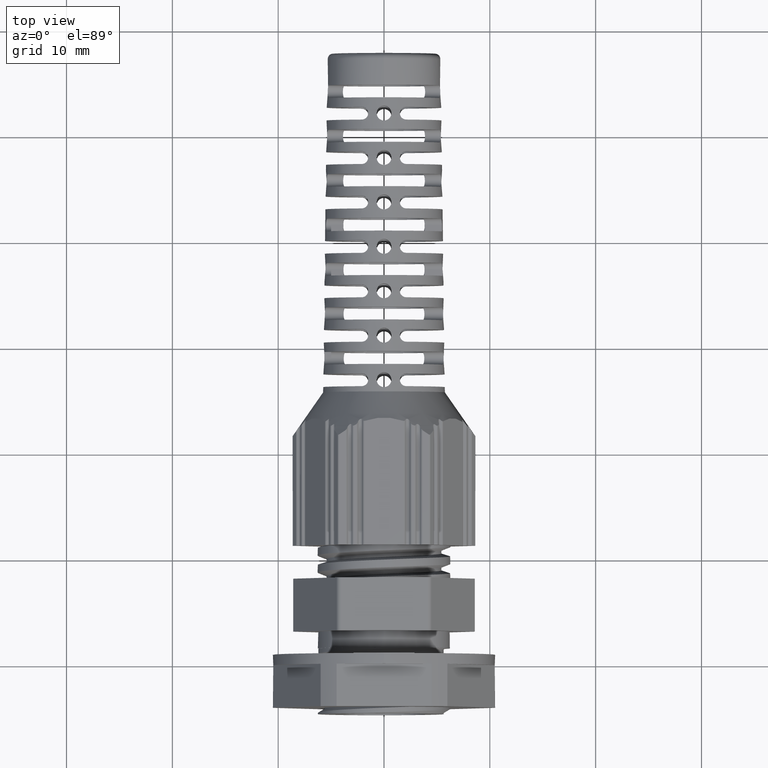
[diagram: clean part render]
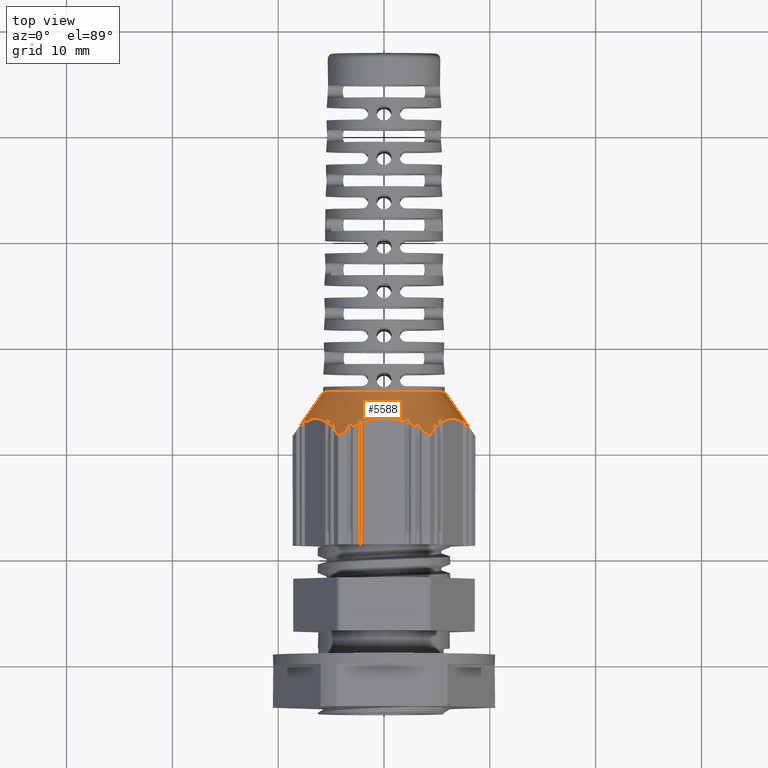
[diagram: same view with one face highlighted and labeled with its STEP entity id]
A machine part, top view. The second image highlights one B-rep face of the part: STEP entity #5588.
In plain terms, the highlighted conical surface has half-angle 34.87 deg.
Its self-contained STEP definition (entity closure, byte-faithful):
#238 = ORIENTED_EDGE ( 'NONE', *, *, #13161, .F. ) ;
#247 = ORIENTED_EDGE ( 'NONE', *, *, #13322, .F. ) ;
#248 = ORIENTED_EDGE ( 'NONE', *, *, #13273, .T. ) ;
#249 = ORIENTED_EDGE ( 'NONE', *, *, #13119, .F. ) ;
#250 = ORIENTED_EDGE ( 'NONE', *, *, #13089, .T. ) ;
#251 = ORIENTED_EDGE ( 'NONE', *, *, #13250, .F. ) ;
#252 = ORIENTED_EDGE ( 'NONE', *, *, #13218, .F. ) ;
#253 = ORIENTED_EDGE ( 'NONE', *, *, #13270, .T. ) ;
#254 = ORIENTED_EDGE ( 'NONE', *, *, #13132, .T. ) ;
#255 = ORIENTED_EDGE ( 'NONE', *, *, #13205, .F. ) ;
#256 = ORIENTED_EDGE ( 'NONE', *, *, #13315, .F. ) ;
#257 = ORIENTED_EDGE ( 'NONE', *, *, #13207, .T. ) ;
#258 = ORIENTED_EDGE ( 'NONE', *, *, #13146, .F. ) ;
#259 = ORIENTED_EDGE ( 'NONE', *, *, #13244, .F. ) ;
#260 = ORIENTED_EDGE ( 'NONE', *, *, #13102, .F. ) ;
#261 = ORIENTED_EDGE ( 'NONE', *, *, #13259, .T. ) ;
#262 = ORIENTED_EDGE ( 'NONE', *, *, #13224, .F. ) ;
#263 = ORIENTED_EDGE ( 'NONE', *, *, #13130, .T. ) ;
#264 = ORIENTED_EDGE ( 'NONE', *, *, #13298, .F. ) ;
#265 = ORIENTED_EDGE ( 'NONE', *, *, #13316, .T. ) ;
#266 = ORIENTED_EDGE ( 'NONE', *, *, #13313, .F. ) ;
#267 = ORIENTED_EDGE ( 'NONE', *, *, #13105, .F. ) ;
#268 = ORIENTED_EDGE ( 'NONE', *, *, #13257, .F. ) ;
#269 = ORIENTED_EDGE ( 'NONE', *, *, #13383, .F. ) ;
#270 = ORIENTED_EDGE ( 'NONE', *, *, #13082, .T. ) ;
#271 = ORIENTED_EDGE ( 'NONE', *, *, #13109, .T. ) ;
#272 = ORIENTED_EDGE ( 'NONE', *, *, #13261, .F. ) ;
#273 = ORIENTED_EDGE ( 'NONE', *, *, #13247, .F. ) ;
#274 = ORIENTED_EDGE ( 'NONE', *, *, #13096, .T. ) ;
#275 = ORIENTED_EDGE ( 'NONE', *, *, #13080, .T. ) ;
#276 = ORIENTED_EDGE ( 'NONE', *, *, #13192, .T. ) ;
#277 = ORIENTED_EDGE ( 'NONE', *, *, #13320, .T. ) ;
#278 = ORIENTED_EDGE ( 'NONE', *, *, #13100, .T. ) ;
#279 = ORIENTED_EDGE ( 'NONE', *, *, #13173, .T. ) ;
#280 = ORIENTED_EDGE ( 'NONE', *, *, #13296, .F. ) ;
#281 = ORIENTED_EDGE ( 'NONE', *, *, #13157, .F. ) ;
#282 = ORIENTED_EDGE ( 'NONE', *, *, #13167, .T. ) ;
#283 = ORIENTED_EDGE ( 'NONE', *, *, #13228, .F. ) ;
#284 = ORIENTED_EDGE ( 'NONE', *, *, #13145, .T. ) ;
#285 = ORIENTED_EDGE ( 'NONE', *, *, #13201, .F. ) ;
#286 = ORIENTED_EDGE ( 'NONE', *, *, #13180, .F. ) ;
#287 = ORIENTED_EDGE ( 'NONE', *, *, #13177, .F. ) ;
#288 = ORIENTED_EDGE ( 'NONE', *, *, #13239, .F. ) ;
#289 = ORIENTED_EDGE ( 'NONE', *, *, #13343, .F. ) ;
#290 = ORIENTED_EDGE ( 'NONE', *, *, #13141, .F. ) ;
#291 = ORIENTED_EDGE ( 'NONE', *, *, #13318, .T. ) ;
#292 = ORIENTED_EDGE ( 'NONE', *, *, #13181, .F. ) ;
#293 = ORIENTED_EDGE ( 'NONE', *, *, #13230, .F. ) ;
#294 = ORIENTED_EDGE ( 'NONE', *, *, #13252, .F. ) ;
#295 = ORIENTED_EDGE ( 'NONE', *, *, #13220, .F. ) ;
#296 = ORIENTED_EDGE ( 'NONE', *, *, #13359, .F. ) ;
#298 = ORIENTED_EDGE ( 'NONE', *, *, #13267, .T. ) ;
#299 = ORIENTED_EDGE ( 'NONE', *, *, #13215, .F. ) ;
#300 = ORIENTED_EDGE ( 'NONE', *, *, #13067, .T. ) ;
#301 = ORIENTED_EDGE ( 'NONE', *, *, #13441, .F. ) ;
#302 = ORIENTED_EDGE ( 'NONE', *, *, #13397, .F. ) ;
#303 = ORIENTED_EDGE ( 'NONE', *, *, #13098, .T. ) ;
#304 = ORIENTED_EDGE ( 'NONE', *, *, #13209, .F. ) ;
#307 = ORIENTED_EDGE ( 'NONE', *, *, #13221, .T. ) ;
#308 = ORIENTED_EDGE ( 'NONE', *, *, #13272, .F. ) ;
#309 = ORIENTED_EDGE ( 'NONE', *, *, #13094, .F. ) ;
#311 = ORIENTED_EDGE ( 'NONE', *, *, #13285, .F. ) ;
#315 = ORIENTED_EDGE ( 'NONE', *, *, #13308, .F. ) ;
#346 = ORIENTED_EDGE ( 'NONE', *, *, #13302, .F. ) ;
#1970 = DIRECTION ( 'NONE',  ( 1.000000000000000000, 4.012512895427656500E-016, 0.0000000000000000000 ) ) ;
#1994 = FACE_OUTER_BOUND ( 'NONE', #21110, .T. ) ;
#2000 = CARTESIAN_POINT ( 'NONE',  ( -2.610225119009258500E-031, 11.58158799992949500, 8.552847072295026100E-047 ) ) ;
#2002 = DIRECTION ( 'NONE',  ( 3.009384671570742200E-016, -1.000000000000000000, 3.018798700494981600E-032 ) ) ;
#4777 = VECTOR ( 'NONE', #16371, 1000.000000000000100 ) ;
#4785 = VECTOR ( 'NONE', #18428, 1000.000000000000200 ) ;
#4792 = AXIS2_PLACEMENT_3D ( 'NONE', #16360, #16379, #16369 ) ;
#4820 = CIRCLE ( 'NONE', #4792, 5.753472869724976800 ) ;
#5588 = ADVANCED_FACE ( 'NONE', ( #1994 ), #20272, .T. ) ;
#13067 = EDGE_CURVE ( 'NONE', #18401, #18427, #21337, .T. ) ;
#13080 = EDGE_CURVE ( 'NONE', #18351, #18446, #21334, .T. ) ;
#13082 = EDGE_CURVE ( 'NONE', #18369, #18419, #21341, .T. ) ;
#13089 = EDGE_CURVE ( 'NONE', #18381, #18347, #21311, .T. ) ;
#13094 = EDGE_CURVE ( 'NONE', #17860, #18394, #21312, .T. ) ;
#13096 = EDGE_CURVE ( 'NONE', #17906, #18369, #21348, .T. ) ;
#13098 = EDGE_CURVE ( 'NONE', #18367, #18397, #21314, .T. ) ;
#13100 = EDGE_CURVE ( 'NONE', #18455, #17887, #21342, .T. ) ;
#13102 = EDGE_CURVE ( 'NONE', #18455, #18419, #21335, .T. ) ;
#13105 = EDGE_CURVE ( 'NONE', #17869, #17914, #21336, .T. ) ;
#13109 = EDGE_CURVE ( 'NONE', #17860, #17912, #21338, .T. ) ;
#13119 = EDGE_CURVE ( 'NONE', #17875, #17884, #21349, .T. ) ;
#13130 = EDGE_CURVE ( 'NONE', #17910, #17914, #16396, .T. ) ;
#13132 = EDGE_CURVE ( 'NONE', #17899, #17910, #4820, .T. ) ;
#13141 = EDGE_CURVE ( 'NONE', #17884, #17902, #21344, .T. ) ;
#13145 = EDGE_CURVE ( 'NONE', #18413, #18388, #21345, .T. ) ;
#13146 = EDGE_CURVE ( 'NONE', #17913, #17887, #21365, .T. ) ;
#13157 = EDGE_CURVE ( 'NONE', #17877, #17912, #21376, .T. ) ;
#13161 = EDGE_CURVE ( 'NONE', #17902, #17865, #21362, .T. ) ;
#13167 = EDGE_CURVE ( 'NONE', #17875, #17886, #21384, .T. ) ;
#13173 = EDGE_CURVE ( 'NONE', #17913, #17865, #21380, .T. ) ;
#13177 = EDGE_CURVE ( 'NONE', #18394, #17869, #21360, .T. ) ;
#13180 = EDGE_CURVE ( 'NONE', #17906, #17871, #21361, .T. ) ;
#13181 = EDGE_CURVE ( 'NONE', #17871, #17877, #21363, .T. ) ;
#13192 = EDGE_CURVE ( 'NONE', #17918, #18381, #21379, .T. ) ;
#13201 = EDGE_CURVE ( 'NONE', #17916, #17885, #21372, .T. ) ;
#13205 = EDGE_CURVE ( 'NONE', #17893, #17974, #21367, .T. ) ;
#13207 = EDGE_CURVE ( 'NONE', #17916, #18401, #21385, .T. ) ;
#13209 = EDGE_CURVE ( 'NONE', #17866, #17856, #21375, .T. ) ;
#13215 = EDGE_CURVE ( 'NONE', #17941, #18397, #21368, .T. ) ;
#13218 = EDGE_CURVE ( 'NONE', #17858, #18446, #21370, .T. ) ;
#13220 = EDGE_CURVE ( 'NONE', #17855, #17895, #21373, .T. ) ;
#13221 = EDGE_CURVE ( 'NONE', #17898, #18367, #21377, .T. ) ;
#13224 = EDGE_CURVE ( 'NONE', #17897, #17862, #21364, .T. ) ;
#13228 = EDGE_CURVE ( 'NONE', #17903, #17886, #21371, .T. ) ;
#13230 = EDGE_CURVE ( 'NONE', #17859, #17901, #21374, .T. ) ;
#13239 = EDGE_CURVE ( 'NONE', #17895, #17876, #21382, .T. ) ;
#13244 = EDGE_CURVE ( 'NONE', #17901, #17903, #21401, .T. ) ;
#13247 = EDGE_CURVE ( 'NONE', #17862, #18427, #21396, .T. ) ;
#13250 = EDGE_CURVE ( 'NONE', #17883, #18388, #21402, .T. ) ;
#13252 = EDGE_CURVE ( 'NONE', #17881, #17883, #21407, .T. ) ;
#13257 = EDGE_CURVE ( 'NONE', #17915, #17897, #21393, .T. ) ;
#13259 = EDGE_CURVE ( 'NONE', #17857, #18351, #21405, .T. ) ;
#13261 = EDGE_CURVE ( 'NONE', #17918, #17878, #21400, .T. ) ;
#13267 = EDGE_CURVE ( 'NONE', #17879, #17885, #21388, .T. ) ;
#13270 = EDGE_CURVE ( 'NONE', #17868, #17889, #21403, .T. ) ;
#13272 = EDGE_CURVE ( 'NONE', #17863, #17870, #21408, .T. ) ;
#13273 = EDGE_CURVE ( 'NONE', #17863, #17856, #21389, .T. ) ;
#13285 = EDGE_CURVE ( 'NONE', #17857, #17872, #21404, .T. ) ;
#13296 = EDGE_CURVE ( 'NONE', #17878, #17858, #21386, .T. ) ;
#13298 = EDGE_CURVE ( 'NONE', #17879, #18347, #21390, .T. ) ;
#13302 = EDGE_CURVE ( 'NONE', #17899, #17893, #18400, .T. ) ;
#13308 = EDGE_CURVE ( 'NONE', #17890, #17873, #21410, .T. ) ;
#13313 = EDGE_CURVE ( 'NONE', #17872, #17859, #21415, .T. ) ;
#13315 = EDGE_CURVE ( 'NONE', #17898, #17889, #21397, .T. ) ;
#13316 = EDGE_CURVE ( 'NONE', #17855, #17917, #21387, .T. ) ;
#13318 = EDGE_CURVE ( 'NONE', #17915, #18413, #21398, .T. ) ;
#13320 = EDGE_CURVE ( 'NONE', #17890, #17864, #21394, .T. ) ;
#13322 = EDGE_CURVE ( 'NONE', #17974, #17866, #21392, .T. ) ;
#13343 = EDGE_CURVE ( 'NONE', #17876, #17864, #21419, .T. ) ;
#13359 = EDGE_CURVE ( 'NONE', #17868, #17917, #21424, .T. ) ;
#13383 = EDGE_CURVE ( 'NONE', #17908, #17881, #21428, .T. ) ;
#13397 = EDGE_CURVE ( 'NONE', #17873, #17908, #21434, .T. ) ;
#13441 = EDGE_CURVE ( 'NONE', #17870, #17941, #21441, .T. ) ;
#16194 = CARTESIAN_POINT ( 'NONE',  ( 2.300339818570937400, 13.07255616593677100, 7.251728103682848900 ) ) ;
#16198 = CARTESIAN_POINT ( 'NONE',  ( 2.344804765435778600, 13.02738966217101100, 7.270375461808257900 ) ) ;
#16208 = CARTESIAN_POINT ( 'NONE',  ( 2.241190944467992700, 13.09762014408331200, 7.251728103682859600 ) ) ;
#16217 = CARTESIAN_POINT ( 'NONE',  ( 2.439950482139293900, 12.88211963072224000, 7.345700435717623700 ) ) ;
#16236 = CARTESIAN_POINT ( 'NONE',  ( 2.458194431805122100, 12.83042174543140500, 7.377593150975903800 ) ) ;
#16241 = CARTESIAN_POINT ( 'NONE',  ( 2.414646483012206100, 12.93287027851828500, 7.316868576078109100 ) ) ;
#16247 = CARTESIAN_POINT ( 'NONE',  ( -2.025185178257450600, 13.01340615357498200, 7.375865047292987400 ) ) ;
#16249 = CARTESIAN_POINT ( 'NONE',  ( -7.584876453346510100, 12.87738479426965700, 1.559935759200350900 ) ) ;
#16250 = CARTESIAN_POINT ( 'NONE',  ( -7.618280303433792300, 12.83042174543141400, 1.559937750103152400 ) ) ;
#16253 = CARTESIAN_POINT ( 'NONE',  ( -3.150275700228186300, 12.62978751469485200, 7.262467277580194400 ) ) ;
#16254 = CARTESIAN_POINT ( 'NONE',  ( -7.617947728883084600, 12.83088950307782400, 1.559937094777194900 ) ) ;
#16255 = CARTESIAN_POINT ( 'NONE',  ( -7.380518485377252500, 13.05337765288599700, 1.899526684621012800 ) ) ;
#16256 = CARTESIAN_POINT ( 'NONE',  ( -2.144435598933605000, 13.11730534199188500, 7.266756818940342200 ) ) ;
#16260 = CARTESIAN_POINT ( 'NONE',  ( -7.407763251724074600, 13.09213429763442200, 1.671535176415976500 ) ) ;
#16261 = CARTESIAN_POINT ( 'NONE',  ( -7.368402350370545600, 13.11374534198914400, 1.774089581374002500 ) ) ;
#16263 = CARTESIAN_POINT ( 'NONE',  ( -7.617282582307083800, 12.83182501837054300, 1.559935759200318900 ) ) ;
#16265 = CARTESIAN_POINT ( 'NONE',  ( -7.394098978039700400, 13.10414355012025700, 1.693976395229007400 ) ) ;
#16266 = CARTESIAN_POINT ( 'NONE',  ( -3.042767896484538600, 12.58257340501187600, 7.343696160717153800 ) ) ;
#16268 = CARTESIAN_POINT ( 'NONE',  ( -2.241190944468081500, 13.09762014408332000, 7.251728103682824900 ) ) ;
#16270 = CARTESIAN_POINT ( 'NONE',  ( -3.024694616447961300, 12.55085152037068500, 7.374999999999928100 ) ) ;
#16271 = CARTESIAN_POINT ( 'NONE',  ( -7.365519849052440700, 13.09022876892362300, 1.854889061617337200 ) ) ;
#16273 = CARTESIAN_POINT ( 'NONE',  ( -3.199591740922167500, 12.61774584715321400, 7.249999999999906700 ) ) ;
#16276 = CARTESIAN_POINT ( 'NONE',  ( -2.195785079546994600, 13.11686060509576100, 7.251728103682824900 ) ) ;
#16279 = CARTESIAN_POINT ( 'NONE',  ( -2.042615184877985900, 13.04817925779934600, 7.345951726870673300 ) ) ;
#16282 = CARTESIAN_POINT ( 'NONE',  ( -7.552284511856872700, 12.92149553325120000, 1.565896373656173700 ) ) ;
#16288 = CARTESIAN_POINT ( 'NONE',  ( -7.451992034002394400, 13.04733002912565700, 1.616567407484864800 ) ) ;
#16289 = CARTESIAN_POINT ( 'NONE',  ( -7.374217817470623400, 13.11522351392283000, 1.745305925520985100 ) ) ;
#16290 = CARTESIAN_POINT ( 'NONE',  ( -7.400279094970169800, 13.01340615357497700, 1.934070711907809500 ) ) ;
#16291 = CARTESIAN_POINT ( 'NONE',  ( -3.241200967394091600, 12.59337520643984300, 7.249999999999905900 ) ) ;
#16292 = CARTESIAN_POINT ( 'NONE',  ( -3.070527656515289500, 12.61009574028306800, 7.311426885842612600 ) ) ;
#16293 = CARTESIAN_POINT ( 'NONE',  ( -7.486447726111979500, 13.00568780137176500, 1.593921381754231500 ) ) ;
#16294 = CARTESIAN_POINT ( 'NONE',  ( -2.067807567786194200, 13.07999053640170800, 7.315955914608598400 ) ) ;
#16295 = CARTESIAN_POINT ( 'NONE',  ( -7.954103682661016500, 12.52517832146422600, 0.7473132531331458900 ) ) ;
#16296 = CARTESIAN_POINT ( 'NONE',  ( -7.417544506465279900, 12.97848190792393200, 1.964252819546920400 ) ) ;
#16297 = CARTESIAN_POINT ( 'NONE',  ( 7.618280303433776300, 12.83042174543141200, 1.559937750103243400 ) ) ;
#16298 = CARTESIAN_POINT ( 'NONE',  ( -7.911146032386177800, 12.57943092916104200, 0.7977512246005276100 ) ) ;
#16299 = CARTESIAN_POINT ( 'NONE',  ( -5.884262108207385800, 13.11588067672811400, 4.808159063532463600 ) ) ;
#16300 = CARTESIAN_POINT ( 'NONE',  ( -7.400279094970169800, 13.01340615357497700, 1.934070711907809500 ) ) ;
#16301 = CARTESIAN_POINT ( 'NONE',  ( 7.617282582306610400, 12.83182501837120000, 1.559935759200369800 ) ) ;
#16303 = CARTESIAN_POINT ( 'NONE',  ( -8.619747865002365100, 11.61976748010528300, 0.06111396291933126500 ) ) ;
#16304 = CARTESIAN_POINT ( 'NONE',  ( -8.624367121767758000, 11.61328510245897400, 0.04672014520859552700 ) ) ;
#16305 = CARTESIAN_POINT ( 'NONE',  ( -8.115791012080267200, 12.30090813732436800, 0.6930376234659461100 ) ) ;
#16306 = CARTESIAN_POINT ( 'NONE',  ( -7.879239522149063600, 12.58702429889035700, 1.027780370259847800 ) ) ;
#16307 = CARTESIAN_POINT ( 'NONE',  ( -8.609191028408083900, 11.63458760816937100, 0.08844372673209306700 ) ) ;
#16309 = CARTESIAN_POINT ( 'NONE',  ( -7.423072772890861000, 12.90253470541450100, 2.143051198103718600 ) ) ;
#16310 = CARTESIAN_POINT ( 'NONE',  ( -7.430808290725215300, 12.94652172910925700, 2.001205121979561200 ) ) ;
#16311 = CARTESIAN_POINT ( 'NONE',  ( -7.399531325198787500, 12.91845175470113600, 2.183637284919051100 ) ) ;
#16312 = CARTESIAN_POINT ( 'NONE',  ( -8.627631970928700200, 11.60870825098999900, 0.03062359464541792800 ) ) ;
#16313 = CARTESIAN_POINT ( 'NONE',  ( 7.617947728882942500, 12.83088950307801000, 1.559937094777258200 ) ) ;
#16314 = CARTESIAN_POINT ( 'NONE',  ( -8.629313930168537500, 11.60635033549739100, 1.056786168341887200E-015 ) ) ;
#16315 = CARTESIAN_POINT ( 'NONE',  ( -8.153970483431081100, 12.24631630472883800, 0.6930376234659667600 ) ) ;
#16316 = CARTESIAN_POINT ( 'NONE',  ( -7.617615155174056500, 12.83135726072423200, 1.559936431142897400 ) ) ;
#16317 = CARTESIAN_POINT ( 'NONE',  ( -7.986665531906024500, 12.48134807979952400, 0.7261563793800319700 ) ) ;
#16318 = CARTESIAN_POINT ( 'NONE',  ( -8.602519010921515300, 11.64396905661795300, 0.1000000000067791000 ) ) ;
#16319 = CARTESIAN_POINT ( 'NONE',  ( -8.629313930168537500, 11.60635033549739100, 0.004775498748142198800 ) ) ;
#16320 = CARTESIAN_POINT ( 'NONE',  ( -8.332297363026466300, 12.00483788601179900, 0.5680376234659804100 ) ) ;
#16321 = CARTESIAN_POINT ( 'NONE',  ( -7.435157699522650700, 12.90629499097773400, 2.091021862518295500 ) ) ;
#16323 = CARTESIAN_POINT ( 'NONE',  ( 7.617615155173785600, 12.83135726072460900, 1.559936431142934900 ) ) ;
#16324 = CARTESIAN_POINT ( 'NONE',  ( -8.115791012080267200, 12.30090813732436800, 0.6930376234659461100 ) ) ;
#16325 = CARTESIAN_POINT ( 'NONE',  ( -8.050801620625504600, 12.39310157554077900, 0.6991375565024017200 ) ) ;
#16326 = CARTESIAN_POINT ( 'NONE',  ( -7.876654603898292500, 12.61848692363284700, 0.8655613453390278400 ) ) ;
#16327 = CARTESIAN_POINT ( 'NONE',  ( -7.864273836580724500, 12.62221739188085400, 0.9503051881202982900 ) ) ;
#16328 = CARTESIAN_POINT ( 'NONE',  ( -7.867069617062409000, 12.61324264762545200, 0.9787532808617960300 ) ) ;
#16329 = CARTESIAN_POINT ( 'NONE',  ( -8.303858683875196400, 12.04074724668248600, 0.6172948606728878600 ) ) ;
#16330 = CARTESIAN_POINT ( 'NONE',  ( -7.897957607737598800, 12.59539223121416300, 0.8175888158069702900 ) ) ;
#16331 = CARTESIAN_POINT ( 'NONE',  ( -7.888479175750259900, 12.56981710714485700, 1.049321973787077400 ) ) ;
#16332 = CARTESIAN_POINT ( 'NONE',  ( -7.899284661134156900, 12.55085152037068300, 1.068037623465981000 ) ) ;
#16334 = CARTESIAN_POINT ( 'NONE',  ( -7.869101653132245700, 12.62483130948206700, 0.8934587242336350400 ) ) ;
#16335 = CARTESIAN_POINT ( 'NONE',  ( -7.617282582307083800, 12.83182501837054300, 1.559935759200318900 ) ) ;
#16336 = CARTESIAN_POINT ( 'NONE',  ( -8.629141826632050500, 11.60659158641401100, 0.009559830133176613900 ) ) ;
#16337 = CARTESIAN_POINT ( 'NONE',  ( -6.185879963450249300, 13.22713310019715700, 4.285741613781865100 ) ) ;
#16338 = CARTESIAN_POINT ( 'NONE',  ( -7.106173644382888500, 13.11584415611424200, 2.691746732995008000 ) ) ;
#16339 = CARTESIAN_POINT ( 'NONE',  ( -5.590851179369837000, 12.91845186001134100, 5.316363191367393900 ) ) ;
#16340 = CARTESIAN_POINT ( 'NONE',  ( -8.191797061711227500, 12.19325242480041100, 0.6848460222053985900 ) ) ;
#16341 = CARTESIAN_POINT ( 'NONE',  ( -8.266343307556168100, 12.09100716503034600, 0.6469548311959328900 ) ) ;
#16342 = CARTESIAN_POINT ( 'NONE',  ( -6.805592558465430200, 13.22687425244512500, 3.212367913125217200 ) ) ;
#16343 = CARTESIAN_POINT ( 'NONE',  ( -7.399531325198787500, 12.91845175470113600, 2.183637284919051100 ) ) ;
#16344 = CARTESIAN_POINT ( 'NONE',  ( -8.615166892614155400, 11.62619613183778000, 0.07538848474020314000 ) ) ;
#16345 = CARTESIAN_POINT ( 'NONE',  ( -8.628802096014963400, 11.60706785428581600, 0.01429935967898562900 ) ) ;
#16347 = CARTESIAN_POINT ( 'NONE',  ( -8.083157493104737400, 12.34756995693275000, 0.6930376234659455500 ) ) ;
#16357 = CARTESIAN_POINT ( 'NONE',  ( -4.874590044686188500, 12.55085152037068700, 6.306962376533928000 ) ) ;
#16360 = CARTESIAN_POINT ( 'NONE',  ( -1.249441824147720100E-015, 15.73340626348028500, -1.253350357869844300E-031 ) ) ;
#16361 = CARTESIAN_POINT ( 'NONE',  ( -5.069595352350150500, 12.47564103581040700, 6.219203275914491500 ) ) ;
#16363 = CARTESIAN_POINT ( 'NONE',  ( -4.910608380810004700, 12.51924216387382500, 6.306962376533942200 ) ) ;
#16369 = DIRECTION ( 'NONE',  ( 1.000000000000000000, 0.0000000000000000000, 0.0000000000000000000 ) ) ;
#16370 = CARTESIAN_POINT ( 'NONE',  ( -4.951415183072362500, 12.49185550668400100, 6.299369974413139100 ) ) ;
#16371 = DIRECTION ( 'NONE',  ( -0.5717134670437096200, -0.8204533573585162100, 7.001470674445152500E-017 ) ) ;
#16374 = CARTESIAN_POINT ( 'NONE',  ( -5.033458864170375700, 12.46782289693580200, 6.255517768284789800 ) ) ;
#16378 = CARTESIAN_POINT ( 'NONE',  ( -5.091096395632352900, 12.49728020360402200, 6.181962376533985700 ) ) ;
#16379 = DIRECTION ( 'NONE',  ( 3.009384671570742200E-016, -1.000000000000000000, 3.018798700494981600E-032 ) ) ;
#16388 = CARTESIAN_POINT ( 'NONE',  ( -8.646568976531197500, 11.58158799992949100, 1.058899302071573800E-015 ) ) ;
#16396 = LINE ( 'NONE', #16388, #4777 ) ;
#16399 = CARTESIAN_POINT ( 'NONE',  ( -5.178310762806788100, 12.58264584884174700, 6.030902661437898400 ) ) ;
#16403 = CARTESIAN_POINT ( 'NONE',  ( -5.409837525830391200, 12.97850959787042900, 5.441655676549610000 ) ) ;
#16406 = CARTESIAN_POINT ( 'NONE',  ( 3.241200967394005900, 12.59337520643984500, 7.249999999999944000 ) ) ;
#16407 = CARTESIAN_POINT ( 'NONE',  ( 3.298894448074345400, 12.55958397289979800, 7.249999999999457300 ) ) ;
#16408 = CARTESIAN_POINT ( 'NONE',  ( -7.934126153724503400, 12.46790687109830900, 1.231212532968421800 ) ) ;
#16411 = CARTESIAN_POINT ( 'NONE',  ( -7.917310547092878200, 12.51921282093259600, 1.099259373797910200 ) ) ;
#16412 = CARTESIAN_POINT ( 'NONE',  ( 3.342498042624432400, 12.51027405233273600, 7.267680196913158100 ) ) ;
#16414 = CARTESIAN_POINT ( 'NONE',  ( -5.590851179369837000, 12.91845186001134100, 5.316363191367393900 ) ) ;
#16416 = CARTESIAN_POINT ( 'NONE',  ( -5.567436908620805100, 12.90250988144973100, 5.357107231114919300 ) ) ;
#16419 = CARTESIAN_POINT ( 'NONE',  ( -7.920771131237177800, 12.47565543390707500, 1.280823206459637200 ) ) ;
#16424 = CARTESIAN_POINT ( 'NONE',  ( 3.457707318340136600, 12.30090813732434500, 7.374999999999968900 ) ) ;
#16425 = CARTESIAN_POINT ( 'NONE',  ( -7.931175258221935900, 12.49167059300371100, 1.138889508324447900 ) ) ;
#16426 = CARTESIAN_POINT ( 'NONE',  ( -5.194557330245182800, 12.61487261667705600, 5.987354239760025900 ) ) ;
#16428 = CARTESIAN_POINT ( 'NONE',  ( -5.448397929490855800, 12.94662813443186000, 5.434660553077996800 ) ) ;
#16429 = CARTESIAN_POINT ( 'NONE',  ( -7.899282856400900800, 12.49728201993623800, 1.318040749329772800 ) ) ;
#16430 = CARTESIAN_POINT ( 'NONE',  ( -5.196590616962515300, 12.65553322092699600, 5.947912309938391900 ) ) ;
#16431 = CARTESIAN_POINT ( 'NONE',  ( -5.120008410702316000, 12.52637795189184400, 6.131885297483612400 ) ) ;
#16433 = CARTESIAN_POINT ( 'NONE',  ( -5.091096395632352900, 12.49728020360402200, 6.181962376533985700 ) ) ;
#16434 = CARTESIAN_POINT ( 'NONE',  ( -5.176403898334120500, 12.78481623066254300, 5.845660344997402700 ) ) ;
#16435 = CARTESIAN_POINT ( 'NONE',  ( -5.160085871628584900, 12.83042174543140500, 5.817655400872700600 ) ) ;
#16436 = CARTESIAN_POINT ( 'NONE',  ( -5.187681404375734200, 12.74055292906079400, 5.876890598765740500 ) ) ;
#16437 = CARTESIAN_POINT ( 'NONE',  ( -5.528051717316305500, 12.90644344263813900, 5.393790082736879700 ) ) ;
#16438 = CARTESIAN_POINT ( 'NONE',  ( -5.178310762806788100, 12.58264584884174700, 6.030902661437898400 ) ) ;
#16439 = CARTESIAN_POINT ( 'NONE',  ( 3.438755462600867000, 12.35510566805421600, 7.342174422961830900 ) ) ;
#16441 = CARTESIAN_POINT ( 'NONE',  ( -7.899284661134156900, 12.55085152037068300, 1.068037623465981000 ) ) ;
#16443 = CARTESIAN_POINT ( 'NONE',  ( 3.412325423572130800, 12.40907285417310900, 7.313050785360609000 ) ) ;
#16444 = CARTESIAN_POINT ( 'NONE',  ( -5.375093916712702800, 13.01340615357499100, 5.441794335385165700 ) ) ;
#16445 = CARTESIAN_POINT ( 'NONE',  ( -5.149080575321447900, 12.55484869115733000, 6.081530831277270000 ) ) ;
#16449 = CARTESIAN_POINT ( 'NONE',  ( -4.622171709775293500, 12.48281177342457000, 6.552351429901984900 ) ) ;
#16450 = CARTESIAN_POINT ( 'NONE',  ( -4.630692064112268200, 12.39380892156420100, 6.622154797105613600 ) ) ;
#16453 = CARTESIAN_POINT ( 'NONE',  ( -4.657474462493391700, 12.59585119293327600, 6.430321088568874200 ) ) ;
#16455 = CARTESIAN_POINT ( 'NONE',  ( -5.160085871628584900, 12.83042174543140500, 5.817655400872700600 ) ) ;
#16457 = CARTESIAN_POINT ( 'NONE',  ( -4.874590044686188500, 12.55085152037068700, 6.306962376533928000 ) ) ;
#16458 = CARTESIAN_POINT ( 'NONE',  ( -4.779200341837129600, 12.62063992536639000, 6.318938270603870100 ) ) ;
#16459 = CARTESIAN_POINT ( 'NONE',  ( -5.289356954216569500, 13.09010200221760700, 5.451196550989999800 ) ) ;
#16460 = CARTESIAN_POINT ( 'NONE',  ( -5.220744064578630300, 13.11372477818373400, 5.494069200213819400 ) ) ;
#16461 = CARTESIAN_POINT ( 'NONE',  ( -7.841299873286524200, 12.55484926950055100, 1.418470222084349000 ) ) ;
#16462 = CARTESIAN_POINT ( 'NONE',  ( -5.375093916712702800, 13.01340615357499100, 5.441794335385165700 ) ) ;
#16464 = CARTESIAN_POINT ( 'NONE',  ( -8.602519010921515300, 11.64396905661795300, 0.1000000000067791000 ) ) ;
#16465 = CARTESIAN_POINT ( 'NONE',  ( -5.198935311711436700, 13.11527622199488800, 5.513230225369773600 ) ) ;
#16466 = CARTESIAN_POINT ( 'NONE',  ( -7.650700827599966800, 12.78480424568161300, 1.560067137701134100 ) ) ;
#16469 = CARTESIAN_POINT ( 'NONE',  ( -5.123523549741240600, 13.00639985875165100, 5.685895762135330300 ) ) ;
#16471 = CARTESIAN_POINT ( 'NONE',  ( -7.870371436290357200, 12.52637913663541400, 1.368116797906270300 ) ) ;
#16472 = CARTESIAN_POINT ( 'NONE',  ( -8.423910450346456400, 11.88915855444730400, 0.4093591015895246500 ) ) ;
#16473 = CARTESIAN_POINT ( 'NONE',  ( -7.683322799290971600, 12.74063288592854400, 1.554205053278361300 ) ) ;
#16474 = CARTESIAN_POINT ( 'NONE',  ( -7.782471106159295700, 12.61488179987544600, 1.504951703518976300 ) ) ;
#16475 = CARTESIAN_POINT ( 'NONE',  ( -7.812070293959799000, 12.58264584884174500, 1.469097338562089800 ) ) ;
#16476 = CARTESIAN_POINT ( 'NONE',  ( -5.125929972834554400, 13.04720141897191400, 5.645501999029149500 ) ) ;
#16477 = CARTESIAN_POINT ( 'NONE',  ( -8.513890661797940900, 11.76858837754452100, 0.2535088036797654700 ) ) ;
#16479 = CARTESIAN_POINT ( 'NONE',  ( -7.899282856400900800, 12.49728201993623800, 1.318040749329772800 ) ) ;
#16481 = CARTESIAN_POINT ( 'NONE',  ( -7.618280303433792300, 12.83042174543141400, 1.559937750103152400 ) ) ;
#16483 = CARTESIAN_POINT ( 'NONE',  ( -7.748959185871473000, 12.65601238996531700, 1.526619394759686700 ) ) ;
#16485 = CARTESIAN_POINT ( 'NONE',  ( -4.646627070489432600, 12.57970349827897000, 6.452013009055606000 ) ) ;
#16486 = CARTESIAN_POINT ( 'NONE',  ( -5.132331577370930400, 12.92071963143990700, 5.758173378892458100 ) ) ;
#16488 = CARTESIAN_POINT ( 'NONE',  ( -7.812070293959799000, 12.58264584884174500, 1.469097338562089800 ) ) ;
#16489 = CARTESIAN_POINT ( 'NONE',  ( -4.831511233341723600, 12.58865708419703600, 6.306962376533925300 ) ) ;
#16490 = CARTESIAN_POINT ( 'NONE',  ( -4.688210954110391300, 12.61856948914594400, 6.388320666258854500 ) ) ;
#16491 = CARTESIAN_POINT ( 'NONE',  ( -4.658083693740064000, 12.30090813732434500, 6.681962376533960000 ) ) ;
#16492 = CARTESIAN_POINT ( 'NONE',  ( -8.332297363026466300, 12.00483788601179900, 0.5680376234659804100 ) ) ;
#16493 = CARTESIAN_POINT ( 'NONE',  ( -5.335338240988972000, 13.05333683975581000, 5.441952996958934600 ) ) ;
#16494 = CARTESIAN_POINT ( 'NONE',  ( -5.151468995500161800, 13.09214267559563900, 5.579540029442312300 ) ) ;
#16496 = CARTESIAN_POINT ( 'NONE',  ( -5.164113803120020700, 13.10421375251198300, 5.556388534134014500 ) ) ;
#16497 = CARTESIAN_POINT ( 'NONE',  ( -5.143720703493746900, 12.87615901075989200, 5.789569552781025600 ) ) ;
#16498 = CARTESIAN_POINT ( 'NONE',  ( -4.641768321080285800, 12.34756599095421200, 6.653703322142808600 ) ) ;
#16499 = CARTESIAN_POINT ( 'NONE',  ( -4.708840167864004800, 12.62491614289271500, 6.367646117494206900 ) ) ;
#16500 = CARTESIAN_POINT ( 'NONE',  ( -4.624431978056878600, 12.52597170760615500, 6.513986906144622500 ) ) ;
#16511 = CARTESIAN_POINT ( 'NONE',  ( 2.025185178257447500, 13.01340615357514200, 7.375865047292873700 ) ) ;
#16515 = CARTESIAN_POINT ( 'NONE',  ( 2.007693291630773000, 12.97850959788294600, 7.405884565979527600 ) ) ;
#16516 = CARTESIAN_POINT ( 'NONE',  ( 1.907133375734916500, 12.90644344265771400, 7.484328261968456400 ) ) ;
#16517 = CARTESIAN_POINT ( 'NONE',  ( 1.855672498722899600, 12.90250988144425600, 7.500095412371699400 ) ) ;
#16519 = CARTESIAN_POINT ( 'NONE',  ( 1.808679989883240600, 12.91845185997772200, 7.500000745796271900 ) ) ;
#16524 = CARTESIAN_POINT ( 'NONE',  ( -2.241190944468081500, 13.09762014408332000, 7.251728103682824900 ) ) ;
#16527 = CARTESIAN_POINT ( 'NONE',  ( 8.629313930168537500, 11.60635033549739600, 0.0000000000000000000 ) ) ;
#16528 = CARTESIAN_POINT ( 'NONE',  ( 1.982355135183099500, 12.94662813445520800, 7.435781293382910400 ) ) ;
#16531 = CARTESIAN_POINT ( 'NONE',  ( 2.025185178257447500, 13.01340615357514200, 7.375865047292873700 ) ) ;
#16534 = CARTESIAN_POINT ( 'NONE',  ( 8.629313930168537500, 11.60635033549739600, 0.01595824532656950300 ) ) ;
#16536 = CARTESIAN_POINT ( 'NONE',  ( -2.439945099333215700, 12.88213488398158900, 7.345691025896385000 ) ) ;
#16539 = CARTESIAN_POINT ( 'NONE',  ( -2.458194431805206900, 12.83042174543141600, 7.377593150975867400 ) ) ;
#16547 = CARTESIAN_POINT ( 'NONE',  ( -2.345738167276240700, 13.02635261974931400, 7.270832830532679500 ) ) ;
#16548 = CARTESIAN_POINT ( 'NONE',  ( -2.300359476992870800, 13.07254783579924200, 7.251728103682825800 ) ) ;
#16554 = CARTESIAN_POINT ( 'NONE',  ( -2.415086167627222800, 12.93204455427566700, 7.317328536648564500 ) ) ;
#16557 = CARTESIAN_POINT ( 'NONE',  ( 5.178310762806729500, 12.58264584884172900, 6.030902661437965900 ) ) ;
#16558 = CARTESIAN_POINT ( 'NONE',  ( 7.380590011270309800, 13.05323297125700500, 1.899651720865068900 ) ) ;
#16559 = CARTESIAN_POINT ( 'NONE',  ( 8.627291774580319500, 11.60918434864267500, 0.03216478768396001400 ) ) ;
#16562 = CARTESIAN_POINT ( 'NONE',  ( 8.192579457706683500, 12.19216395650454200, 0.6845945421848375100 ) ) ;
#16563 = CARTESIAN_POINT ( 'NONE',  ( 8.615141161482469600, 11.62623115921482000, 0.07516941666463847200 ) ) ;
#16564 = CARTESIAN_POINT ( 'NONE',  ( 8.604863540984716500, 11.64067243937012800, 0.09593915481734924300 ) ) ;
#16565 = CARTESIAN_POINT ( 'NONE',  ( 8.303809280707714200, 12.04080962778573000, 0.6173804294523407300 ) ) ;
#16566 = CARTESIAN_POINT ( 'NONE',  ( 2.195730772144751400, 13.11688361752942600, 7.251728103682848900 ) ) ;
#16567 = CARTESIAN_POINT ( 'NONE',  ( -3.006668984845520600, 12.51921326737397200, 7.406221309773895800 ) ) ;
#16569 = CARTESIAN_POINT ( 'NONE',  ( 7.812070293959772400, 12.58264584884176800, 1.469097338562169500 ) ) ;
#16570 = CARTESIAN_POINT ( 'NONE',  ( 5.176408186658390400, 12.78480424568160800, 5.845667704605682900 ) ) ;
#16572 = CARTESIAN_POINT ( 'NONE',  ( 7.365635000303369900, 13.08989498546960200, 1.855379848003179300 ) ) ;
#16573 = CARTESIAN_POINT ( 'NONE',  ( 8.609248300607946500, 11.63451070139639400, 0.08731335713730734000 ) ) ;
#16574 = CARTESIAN_POINT ( 'NONE',  ( 2.241190944467992700, 13.09762014408331200, 7.251728103682859600 ) ) ;
#16575 = CARTESIAN_POINT ( 'NONE',  ( 8.620209357486810800, 11.61911887767201200, 0.06152401744963050000 ) ) ;
#16576 = CARTESIAN_POINT ( 'NONE',  ( 2.042600650577287300, 13.04815026166857300, 7.345976670589982000 ) ) ;
#16577 = CARTESIAN_POINT ( 'NONE',  ( 8.266963211394120500, 12.09017257561828500, 0.6464907544748022000 ) ) ;
#16578 = CARTESIAN_POINT ( 'NONE',  ( 7.618280303433776300, 12.83042174543141200, 1.559937750103243400 ) ) ;
#16581 = CARTESIAN_POINT ( 'NONE',  ( 8.607115233134090100, 11.63750768749567600, 0.09170915825636677400 ) ) ;
#16584 = CARTESIAN_POINT ( 'NONE',  ( 8.623736855240824900, 11.61417084533001700, 0.04690123885714967500 ) ) ;
#16585 = CARTESIAN_POINT ( 'NONE',  ( -2.808188265501928300, 12.49728020360399800, 7.499999999999998200 ) ) ;
#16586 = CARTESIAN_POINT ( 'NONE',  ( -2.851163461259041300, 12.47565456758843900, 7.499999999999976900 ) ) ;
#16587 = CARTESIAN_POINT ( 'NONE',  ( -2.900804261566624300, 12.46790708164998100, 7.486759935299348400 ) ) ;
#16588 = CARTESIAN_POINT ( 'NONE',  ( 7.400279094970140500, 13.01340615357499600, 1.934070711907881700 ) ) ;
#16589 = CARTESIAN_POINT ( 'NONE',  ( 5.160085871628513000, 12.83042174543141600, 5.817655400872756600 ) ) ;
#16590 = CARTESIAN_POINT ( 'NONE',  ( 7.650692309830097800, 12.78481623066255100, 1.560067103707520200 ) ) ;
#16591 = CARTESIAN_POINT ( 'NONE',  ( 5.196570770707595000, 12.65601238996531000, 5.947485810473690300 ) ) ;
#16592 = CARTESIAN_POINT ( 'NONE',  ( 2.067809613484467200, 13.07992075401331400, 7.316004613103690000 ) ) ;
#16594 = CARTESIAN_POINT ( 'NONE',  ( 2.144043997669430100, 13.11718506565444300, 7.266958489775449300 ) ) ;
#16596 = CARTESIAN_POINT ( 'NONE',  ( 8.332297363026448500, 12.00483788601182200, 0.5680376234660534700 ) ) ;
#16598 = CARTESIAN_POINT ( 'NONE',  ( -2.979281184777212500, 12.49167138708888900, 7.438043087253556800 ) ) ;
#16599 = CARTESIAN_POINT ( 'NONE',  ( 7.782479538211220800, 12.61487261667706200, 1.504941489527060300 ) ) ;
#16600 = CARTESIAN_POINT ( 'NONE',  ( 8.602519010926609900, 11.64396905661079500, 0.09999999999795093600 ) ) ;
#16601 = CARTESIAN_POINT ( 'NONE',  ( 7.749338468370064300, 12.65553322092700100, 1.526423332388267900 ) ) ;
#16602 = CARTESIAN_POINT ( 'NONE',  ( 8.115791012080265400, 12.30090813732436500, 0.6930376234660403600 ) ) ;
#16604 = CARTESIAN_POINT ( 'NONE',  ( 8.153951018747775900, 12.24634413677264000, 0.6930376234689497000 ) ) ;
#16605 = CARTESIAN_POINT ( 'NONE',  ( 5.187642458474642600, 12.74063288592853900, 5.876850203023017200 ) ) ;
#16606 = CARTESIAN_POINT ( 'NONE',  ( -3.024694616447961300, 12.55085152037068500, 7.374999999999928100 ) ) ;
#16607 = CARTESIAN_POINT ( 'NONE',  ( 7.683377255980917500, 12.74055292906080300, 1.554218583546720800 ) ) ;
#16608 = CARTESIAN_POINT ( 'NONE',  ( 5.194561959795693800, 12.61488179987543600, 5.987341830392900000 ) ) ;
#16609 = CARTESIAN_POINT ( 'NONE',  ( 7.552008616292154000, 12.92188824792683000, 1.565884804857605900 ) ) ;
#16610 = CARTESIAN_POINT ( 'NONE',  ( -4.382028446029660400, 11.63576649778769600, 7.410104091266269700 ) ) ;
#16613 = CARTESIAN_POINT ( 'NONE',  ( 7.617282582306610400, 12.83182501837120000, 1.559935759200369800 ) ) ;
#16617 = CARTESIAN_POINT ( 'NONE',  ( -4.374954112193002200, 11.62833398643544100, 7.420299067134766200 ) ) ;
#16619 = CARTESIAN_POINT ( 'NONE',  ( -4.658083693740064000, 12.30090813732434500, 6.681962376533960000 ) ) ;
#16620 = CARTESIAN_POINT ( 'NONE',  ( 7.393705220057893400, 13.10446146535844000, 1.694705303801615500 ) ) ;
#16622 = CARTESIAN_POINT ( 'NONE',  ( -4.242562666574603000, 11.62603954664183300, 7.498621917476278900 ) ) ;
#16623 = CARTESIAN_POINT ( 'NONE',  ( -4.328541940818977800, 11.60654912228313600, 7.465024541171599600 ) ) ;
#16626 = CARTESIAN_POINT ( 'NONE',  ( -4.658083693740122700, 12.00483788601180600, 6.931962376534005300 ) ) ;
#16627 = CARTESIAN_POINT ( 'NONE',  ( -4.689165993677529600, 12.19216395650453500, 6.752684661804154900 ) ) ;
#16629 = CARTESIAN_POINT ( 'NONE',  ( -4.257359182525158700, 11.61958749426092100, 7.495388128159392600 ) ) ;
#16630 = CARTESIAN_POINT ( 'NONE',  ( -4.302857017479185600, 11.60697725227162300, 7.479501394862362300 ) ) ;
#16632 = CARTESIAN_POINT ( 'NONE',  ( 7.368313126222241200, 13.11364321114277200, 1.774762934168951000 ) ) ;
#16633 = CARTESIAN_POINT ( 'NONE',  ( -4.686571776058867700, 12.04080962778572500, 6.882619570547736200 ) ) ;
#16634 = CARTESIAN_POINT ( 'NONE',  ( -4.214656965092803600, 11.64396905660645800, 7.500000000000000000 ) ) ;
#16635 = CARTESIAN_POINT ( 'NONE',  ( -4.387862045840391200, 11.64396905661030400, 7.400000000002325600 ) ) ;
#16636 = CARTESIAN_POINT ( 'NONE',  ( -4.272283295422569800, 11.61307980295882700, 7.492126452437017500 ) ) ;
#16637 = CARTESIAN_POINT ( 'NONE',  ( 7.373924541625854100, 13.11528502636995900, 1.746360930867776100 ) ) ;
#16638 = CARTESIAN_POINT ( 'NONE',  ( 7.451520996250827100, 13.04787515349955700, 1.616950454310822800 ) ) ;
#16639 = CARTESIAN_POINT ( 'NONE',  ( -4.677163697076337300, 12.24634413677262200, 6.715009911715155200 ) ) ;
#16640 = CARTESIAN_POINT ( 'NONE',  ( -4.228124513450245200, 11.63450077277109300, 7.499999999999425300 ) ) ;
#16643 = CARTESIAN_POINT ( 'NONE',  ( -4.288019127714648000, 11.60852627771220500, 7.486792160795773500 ) ) ;
#16644 = CARTESIAN_POINT ( 'NONE',  ( -4.366545835609037400, 11.62230368017778300, 7.430114453504250700 ) ) ;
#16645 = CARTESIAN_POINT ( 'NONE',  ( -4.315867300261642100, 11.60561902281049400, 7.473108644410672200 ) ) ;
#16649 = CARTESIAN_POINT ( 'NONE',  ( 2.808188265501794700, 12.49728020360404400, 7.500000000000015100 ) ) ;
#16651 = CARTESIAN_POINT ( 'NONE',  ( 7.485205231300042800, 13.00723589207760600, 1.594582253758970700 ) ) ;
#16652 = CARTESIAN_POINT ( 'NONE',  ( -4.349719938984419400, 11.61229251631222700, 7.448067715868583100 ) ) ;
#16653 = CARTESIAN_POINT ( 'NONE',  ( 7.407362342364230300, 13.09250570601455100, 1.672136808934792100 ) ) ;
#16654 = CARTESIAN_POINT ( 'NONE',  ( -4.693359022383944500, 12.09017257561828100, 6.836154775981337500 ) ) ;
#16656 = CARTESIAN_POINT ( 'NONE',  ( 7.584842250837149400, 12.87743287957667500, 1.559935759200492100 ) ) ;
#16658 = CARTESIAN_POINT ( 'NONE',  ( 2.633759531152917600, 12.58264584884177500, 7.500000000000015100 ) ) ;
#16659 = CARTESIAN_POINT ( 'NONE',  ( 2.750364235361874200, 12.52637795189188500, 7.500000000000000000 ) ) ;
#16660 = CARTESIAN_POINT ( 'NONE',  ( -4.339660812948318700, 11.60956451888951000, 7.456121869125311700 ) ) ;
#16662 = CARTESIAN_POINT ( 'NONE',  ( 2.692219906123608700, 12.55484869115737500, 7.500000000000000000 ) ) ;
#16664 = CARTESIAN_POINT ( 'NONE',  ( -4.358780288242323700, 11.61673433092862200, 7.439179551091569900 ) ) ;
#16668 = CARTESIAN_POINT ( 'NONE',  ( 2.979706834142436600, 12.49185550668400100, 7.437736320431247900 ) ) ;
#16669 = CARTESIAN_POINT ( 'NONE',  ( -2.458194431805206900, 12.83042174543141600, 7.377593150975867400 ) ) ;
#16671 = CARTESIAN_POINT ( 'NONE',  ( -3.457707318340229400, 12.30090813732431900, 7.374999999999942300 ) ) ;
#16672 = CARTESIAN_POINT ( 'NONE',  ( -3.438734992759381500, 12.35516420664181900, 7.342138968156169700 ) ) ;
#16673 = CARTESIAN_POINT ( 'NONE',  ( 3.024694616447877800, 12.55085152037068500, 7.374999999999964500 ) ) ;
#16674 = CARTESIAN_POINT ( 'NONE',  ( 2.900707869074288200, 12.46782289693580600, 7.486862129417938900 ) ) ;
#16675 = CARTESIAN_POINT ( 'NONE',  ( 3.674213669286264600, 12.00483788601182900, 7.500000000000020400 ) ) ;
#16676 = CARTESIAN_POINT ( 'NONE',  ( 3.503413464029081500, 12.19216395650453500, 7.437279203988958400 ) ) ;
#16677 = CARTESIAN_POINT ( 'NONE',  ( -4.476490394965198400, 11.76858837753960800, 7.246491196326208400 ) ) ;
#16680 = CARTESIAN_POINT ( 'NONE',  ( 5.091098198854052000, 12.49728201843760200, 6.181959253236337700 ) ) ;
#16681 = CARTESIAN_POINT ( 'NONE',  ( 2.552747851407477100, 12.65553322092700500, 7.474335642326607000 ) ) ;
#16682 = CARTESIAN_POINT ( 'NONE',  ( 2.458194431805122100, 12.83042174543140500, 7.377593150975903800 ) ) ;
#16684 = CARTESIAN_POINT ( 'NONE',  ( 3.617237504648765700, 12.04080962778573200, 7.500000000000040000 ) ) ;
#16685 = CARTESIAN_POINT ( 'NONE',  ( 2.851190352066182300, 12.47564103581040800, 7.500000000000032900 ) ) ;
#16686 = CARTESIAN_POINT ( 'NONE',  ( -4.658083693740122700, 12.00483788601180600, 6.931962376534005300 ) ) ;
#16687 = CARTESIAN_POINT ( 'NONE',  ( 2.495695851605116600, 12.74055292906079700, 7.431109182312413400 ) ) ;
#16691 = CARTESIAN_POINT ( 'NONE',  ( 4.037400266834436200, 11.76858837754078700, 7.500000000000000000 ) ) ;
#16692 = CARTESIAN_POINT ( 'NONE',  ( 3.857439843929224100, 11.88915855444599300, 7.500000000000000000 ) ) ;
#16694 = CARTESIAN_POINT ( 'NONE',  ( 5.178310762806729500, 12.58264584884172900, 6.030902661437965900 ) ) ;
#16698 = CARTESIAN_POINT ( 'NONE',  ( -4.566470606418248800, 11.88915855444544100, 7.090640898413734100 ) ) ;
#16700 = CARTESIAN_POINT ( 'NONE',  ( -4.387862045840391200, 11.64396905661030400, 7.400000000002325600 ) ) ;
#16701 = CARTESIAN_POINT ( 'NONE',  ( 3.573604189010096900, 12.09017257561828500, 7.482645530456101000 ) ) ;
#16702 = CARTESIAN_POINT ( 'NONE',  ( 3.457707318340136600, 12.30090813732434500, 7.374999999999968900 ) ) ;
#16706 = CARTESIAN_POINT ( 'NONE',  ( 5.120009619478038200, 12.52637913565788500, 6.131883203822647000 ) ) ;
#16708 = CARTESIAN_POINT ( 'NONE',  ( 2.474288411495909800, 12.78481623066254600, 7.405727448704877400 ) ) ;
#16709 = CARTESIAN_POINT ( 'NONE',  ( 2.587922207965963000, 12.61487261667706500, 7.492295729287034700 ) ) ;
#16710 = CARTESIAN_POINT ( 'NONE',  ( 3.674213669286264600, 12.00483788601182900, 7.500000000000020400 ) ) ;
#16711 = CARTESIAN_POINT ( 'NONE',  ( 5.149081182978248300, 12.55484926902334700, 6.081529778784816800 ) ) ;
#16714 = CARTESIAN_POINT ( 'NONE',  ( 4.214656965084262900, 11.64396905661246400, 7.500000000000000000 ) ) ;
#16715 = CARTESIAN_POINT ( 'NONE',  ( 3.006685448385979500, 12.51924216387382700, 7.406192794085239200 ) ) ;
#16717 = CARTESIAN_POINT ( 'NONE',  ( 2.633759531152917600, 12.58264584884177500, 7.500000000000015100 ) ) ;
#16718 = CARTESIAN_POINT ( 'NONE',  ( 3.476787321671372500, 12.24634413677262600, 7.408047535184068400 ) ) ;
#16719 = CARTESIAN_POINT ( 'NONE',  ( 5.590851023990123500, 12.91845175470112600, 5.316363461261415700 ) ) ;
#16720 = CARTESIAN_POINT ( 'NONE',  ( 7.917293829196061100, 12.51924216387382700, 1.099230417551337700 ) ) ;
#16721 = CARTESIAN_POINT ( 'NONE',  ( -1.221965716274046300, 13.11584416793971500, 7.500000266213994000 ) ) ;
#16723 = CARTESIAN_POINT ( 'NONE',  ( 6.184788498305991300, 13.22687425244691000, 4.287632086866408600 ) ) ;
#16724 = CARTESIAN_POINT ( 'NONE',  ( 8.083160266760712500, 12.34756599095423700, 0.6930376234660382600 ) ) ;
#16725 = CARTESIAN_POINT ( 'NONE',  ( 8.115791012080265400, 12.30090813732436500, 0.6930376234660403600 ) ) ;
#16726 = CARTESIAN_POINT ( 'NONE',  ( 7.910920706634535700, 12.57970349827897900, 0.7980905804285876000 ) ) ;
#16731 = CARTESIAN_POINT ( 'NONE',  ( 7.920785704416411800, 12.47564103581041000, 1.280796724085588200 ) ) ;
#16732 = CARTESIAN_POINT ( 'NONE',  ( -1.808680237907442000, 12.91845177608602700, 7.500000746117207100 ) ) ;
#16733 = CARTESIAN_POINT ( 'NONE',  ( -2.552388415163805700, 12.65601238996531400, 7.474105205233331400 ) ) ;
#16734 = CARTESIAN_POINT ( 'NONE',  ( -3.343275195789636300, 12.50936548552670200, 7.268019255648790800 ) ) ;
#16735 = CARTESIAN_POINT ( 'NONE',  ( 7.899284661134145400, 12.55085152037068500, 1.068037623466072400 ) ) ;
#16736 = CARTESIAN_POINT ( 'NONE',  ( 7.399531169167500100, 12.91845186000195700, 2.183637554404754200 ) ) ;
#16737 = CARTESIAN_POINT ( 'NONE',  ( -2.633759531153013500, 12.58264584884174700, 7.500000000000000000 ) ) ;
#16739 = CARTESIAN_POINT ( 'NONE',  ( 0.6186211506393238800, 13.22713309632667700, 7.500000000000000000 ) ) ;
#16740 = CARTESIAN_POINT ( 'NONE',  ( 2.808188265501794700, 12.49728020360404400, 7.500000000000015100 ) ) ;
#16741 = CARTESIAN_POINT ( 'NONE',  ( 7.897558648438133500, 12.59585119293328900, 0.8183306577121924900 ) ) ;
#16743 = CARTESIAN_POINT ( 'NONE',  ( 1.221856851175690200, 13.11588067309684300, 7.500000000000000900 ) ) ;
#16744 = CARTESIAN_POINT ( 'NONE',  ( 7.985588647706041600, 12.48281177342458800, 0.7267424063682411700 ) ) ;
#16747 = CARTESIAN_POINT ( 'NONE',  ( 6.804501093326496900, 13.22713310019538600, 3.214258386200540100 ) ) ;
#16749 = CARTESIAN_POINT ( 'NONE',  ( 7.868963383991323100, 12.62491614289271700, 0.8941521489837834800 ) ) ;
#16751 = CARTESIAN_POINT ( 'NONE',  ( -2.495680340816259800, 12.74063288592854300, 7.431055256301338100 ) ) ;
#16752 = CARTESIAN_POINT ( 'NONE',  ( -2.587909146363533100, 12.61488179987543900, 7.492293533911828600 ) ) ;
#16753 = CARTESIAN_POINT ( 'NONE',  ( 7.899284661134205800, 12.49728020360404200, 1.318037623466083600 ) ) ;
#16754 = CARTESIAN_POINT ( 'NONE',  ( 7.899284661134145400, 12.55085152037068500, 1.068037623466072400 ) ) ;
#16756 = CARTESIAN_POINT ( 'NONE',  ( 7.861961238207216600, 12.62063992536639200, 0.9794397705043724800 ) ) ;
#16757 = CARTESIAN_POINT ( 'NONE',  ( -3.241200967394091600, 12.59337520643984300, 7.249999999999905900 ) ) ;
#16758 = CARTESIAN_POINT ( 'NONE',  ( -0.6208040155826780600, 13.22687425632927100, 7.500000000000000900 ) ) ;
#16759 = CARTESIAN_POINT ( 'NONE',  ( -3.412961634477649200, 12.40792856778780800, 7.313633460365630300 ) ) ;
#16760 = CARTESIAN_POINT ( 'NONE',  ( 1.808679989883240600, 12.91845185997772200, 7.500000745796271900 ) ) ;
#16761 = CARTESIAN_POINT ( 'NONE',  ( 7.106118948571179300, 13.11588067672292200, 2.691840936446795200 ) ) ;
#16762 = CARTESIAN_POINT ( 'NONE',  ( 5.884207873521229500, 13.11584415611583400, 4.808253533237462700 ) ) ;
#16763 = CARTESIAN_POINT ( 'NONE',  ( 7.876553461556482300, 12.61856948914595300, 0.8659494514307324300 ) ) ;
#16764 = CARTESIAN_POINT ( 'NONE',  ( -3.298920213143914400, 12.55956888222554500, 7.249999999999906700 ) ) ;
#16765 = CARTESIAN_POINT ( 'NONE',  ( 7.934166733244740800, 12.46782289693581300, 1.231344361133196200 ) ) ;
#16766 = CARTESIAN_POINT ( 'NONE',  ( 7.953494129668869500, 12.52597170760616800, 0.7478821179981420800 ) ) ;
#16767 = CARTESIAN_POINT ( 'NONE',  ( 7.931122017214877800, 12.49185550668400400, 1.138366346018152100 ) ) ;
#16768 = CARTESIAN_POINT ( 'NONE',  ( 8.050300314142559100, 12.39380892156422400, 0.6992195660714889400 ) ) ;
#16769 = CARTESIAN_POINT ( 'NONE',  ( -2.474292640941506700, 12.78480424568160800, 7.405734842306774400 ) ) ;
#16770 = CARTESIAN_POINT ( 'NONE',  ( 7.877745255461908500, 12.58865708419703800, 1.030730278476931000 ) ) ;
#17855 = VERTEX_POINT ( 'NONE', #19855 ) ;
#17856 = VERTEX_POINT ( 'NONE', #19839 ) ;
#17857 = VERTEX_POINT ( 'NONE', #19865 ) ;
#17858 = VERTEX_POINT ( 'NONE', #19814 ) ;
#17859 = VERTEX_POINT ( 'NONE', #19840 ) ;
#17860 = VERTEX_POINT ( 'NONE', #19835 ) ;
#17862 = VERTEX_POINT ( 'NONE', #19880 ) ;
#17863 = VERTEX_POINT ( 'NONE', #19849 ) ;
#17864 = VERTEX_POINT ( 'NONE', #19872 ) ;
#17865 = VERTEX_POINT ( 'NONE', #19833 ) ;
#17866 = VERTEX_POINT ( 'NONE', #19811 ) ;
#17868 = VERTEX_POINT ( 'NONE', #19873 ) ;
#17869 = VERTEX_POINT ( 'NONE', #19851 ) ;
#17870 = VERTEX_POINT ( 'NONE', #19882 ) ;
#17871 = VERTEX_POINT ( 'NONE', #19868 ) ;
#17872 = VERTEX_POINT ( 'NONE', #19881 ) ;
#17873 = VERTEX_POINT ( 'NONE', #19819 ) ;
#17875 = VERTEX_POINT ( 'NONE', #19883 ) ;
#17876 = VERTEX_POINT ( 'NONE', #19831 ) ;
#17877 = VERTEX_POINT ( 'NONE', #19824 ) ;
#17878 = VERTEX_POINT ( 'NONE', #19825 ) ;
#17879 = VERTEX_POINT ( 'NONE', #19874 ) ;
#17881 = VERTEX_POINT ( 'NONE', #19826 ) ;
#17883 = VERTEX_POINT ( 'NONE', #19853 ) ;
#17884 = VERTEX_POINT ( 'NONE', #19859 ) ;
#17885 = VERTEX_POINT ( 'NONE', #19829 ) ;
#17886 = VERTEX_POINT ( 'NONE', #19876 ) ;
#17887 = VERTEX_POINT ( 'NONE', #19886 ) ;
#17889 = VERTEX_POINT ( 'NONE', #19813 ) ;
#17890 = VERTEX_POINT ( 'NONE', #19863 ) ;
#17893 = VERTEX_POINT ( 'NONE', #19832 ) ;
#17895 = VERTEX_POINT ( 'NONE', #19943 ) ;
#17897 = VERTEX_POINT ( 'NONE', #19952 ) ;
#17898 = VERTEX_POINT ( 'NONE', #19890 ) ;
#17899 = VERTEX_POINT ( 'NONE', #19946 ) ;
#17901 = VERTEX_POINT ( 'NONE', #19973 ) ;
#17902 = VERTEX_POINT ( 'NONE', #19944 ) ;
#17903 = VERTEX_POINT ( 'NONE', #19891 ) ;
#17906 = VERTEX_POINT ( 'NONE', #19971 ) ;
#17908 = VERTEX_POINT ( 'NONE', #19945 ) ;
#17910 = VERTEX_POINT ( 'NONE', #19969 ) ;
#17912 = VERTEX_POINT ( 'NONE', #19893 ) ;
#17913 = VERTEX_POINT ( 'NONE', #19968 ) ;
#17914 = VERTEX_POINT ( 'NONE', #19914 ) ;
#17915 = VERTEX_POINT ( 'NONE', #19903 ) ;
#17916 = VERTEX_POINT ( 'NONE', #19905 ) ;
#17917 = VERTEX_POINT ( 'NONE', #19954 ) ;
#17918 = VERTEX_POINT ( 'NONE', #19972 ) ;
#17941 = VERTEX_POINT ( 'NONE', #19887 ) ;
#17974 = VERTEX_POINT ( 'NONE', #20028 ) ;
#18249 = CARTESIAN_POINT ( 'NONE',  ( -2.750364235361986200, 12.52637795189183100, 7.500000000000000000 ) ) ;
#18251 = CARTESIAN_POINT ( 'NONE',  ( -2.808188265501928300, 12.49728020360399800, 7.499999999999998200 ) ) ;
#18253 = CARTESIAN_POINT ( 'NONE',  ( -1.855599549607085800, 12.90253470892826600, 7.500095206278578200 ) ) ;
#18263 = CARTESIAN_POINT ( 'NONE',  ( -1.906700756900584500, 12.90629497846261300, 7.484546399475545900 ) ) ;
#18272 = CARTESIAN_POINT ( 'NONE',  ( -2.633759531153013500, 12.58264584884174700, 7.500000000000000000 ) ) ;
#18281 = CARTESIAN_POINT ( 'NONE',  ( -1.982309660509758800, 12.94652171444462100, 7.435871325011537400 ) ) ;
#18283 = CARTESIAN_POINT ( 'NONE',  ( -3.572892334861325300, 12.09100716503033700, 7.482340716345101200 ) ) ;
#18295 = CARTESIAN_POINT ( 'NONE',  ( -3.617336310969289300, 12.04074724668248200, 7.500000000008384400 ) ) ;
#18305 = CARTESIAN_POINT ( 'NONE',  ( -1.808680237907442000, 12.91845177608602700, 7.500000746117207100 ) ) ;
#18307 = CARTESIAN_POINT ( 'NONE',  ( -2.007679408085836200, 12.97848190001581200, 7.405908392877004900 ) ) ;
#18319 = CARTESIAN_POINT ( 'NONE',  ( -2.025185178257450600, 13.01340615357498200, 7.375865047292987400 ) ) ;
#18338 = CARTESIAN_POINT ( 'NONE',  ( -3.457707318340229400, 12.30090813732431900, 7.374999999999942300 ) ) ;
#18340 = CARTESIAN_POINT ( 'NONE',  ( -3.674213669286339200, 12.00483788601180800, 7.500000000000000000 ) ) ;
#18346 = CARTESIAN_POINT ( 'NONE',  ( -3.502804477945016300, 12.19325242480038600, 7.436727369191365800 ) ) ;
#18347 = VERTEX_POINT ( 'NONE', #20391 ) ;
#18351 = VERTEX_POINT ( 'NONE', #20393 ) ;
#18356 = CARTESIAN_POINT ( 'NONE',  ( -2.692219906123706000, 12.55484869115732500, 7.500000000000000000 ) ) ;
#18360 = CARTESIAN_POINT ( 'NONE',  ( -3.476797054015615000, 12.24631630472880900, 7.408064392092802200 ) ) ;
#18366 = CARTESIAN_POINT ( 'NONE',  ( -3.857439843931958800, 11.88915855444375700, 7.500000000000000000 ) ) ;
#18367 = VERTEX_POINT ( 'NONE', #20380 ) ;
#18369 = VERTEX_POINT ( 'NONE', #20372 ) ;
#18370 = CARTESIAN_POINT ( 'NONE',  ( 3.024694616447877800, 12.55085152037068500, 7.374999999999964500 ) ) ;
#18372 = CARTESIAN_POINT ( 'NONE',  ( 3.042759199095248900, 12.58255813951626200, 7.343711225037187900 ) ) ;
#18376 = CARTESIAN_POINT ( 'NONE',  ( 7.400279094970140500, 13.01340615357499600, 1.934070711907881700 ) ) ;
#18380 = CARTESIAN_POINT ( 'NONE',  ( 7.417530817453221700, 12.97850959787389500, 1.964228889437740700 ) ) ;
#18381 = VERTEX_POINT ( 'NONE', #20407 ) ;
#18387 = CARTESIAN_POINT ( 'NONE',  ( 7.423109407261406100, 12.90250988144820200, 2.142988181250789400 ) ) ;
#18388 = VERTEX_POINT ( 'NONE', #20397 ) ;
#18389 = CARTESIAN_POINT ( 'NONE',  ( 5.143737471406671700, 12.87611214790585700, 5.789598329818594500 ) ) ;
#18394 = VERTEX_POINT ( 'NONE', #20405 ) ;
#18396 = CARTESIAN_POINT ( 'NONE',  ( 5.132474947716769300, 12.92035956225998600, 5.758380144327878400 ) ) ;
#18397 = VERTEX_POINT ( 'NONE', #20447 ) ;
#18398 = CARTESIAN_POINT ( 'NONE',  ( 5.123578649643696400, 13.00485242715769600, 5.687295947365814900 ) ) ;
#18400 = LINE ( 'NONE', #18465, #4785 ) ;
#18401 = VERTEX_POINT ( 'NONE', #20399 ) ;
#18404 = CARTESIAN_POINT ( 'NONE',  ( -4.214656965092803600, 11.64396905660645800, 7.500000000000000000 ) ) ;
#18410 = CARTESIAN_POINT ( 'NONE',  ( 4.693450972694769500, 12.09100716503034300, 6.835385885149206000 ) ) ;
#18413 = VERTEX_POINT ( 'NONE', #20402 ) ;
#18416 = CARTESIAN_POINT ( 'NONE',  ( -4.037400266840367500, 11.76858837753711000, 7.500000000000000000 ) ) ;
#18418 = CARTESIAN_POINT ( 'NONE',  ( 7.430753064653390400, 12.94662813443836800, 2.001120740319357200 ) ) ;
#18419 = VERTEX_POINT ( 'NONE', #20410 ) ;
#18422 = CARTESIAN_POINT ( 'NONE',  ( 7.435185092990276500, 12.90644344264360700, 2.090538179242441800 ) ) ;
#18424 = CARTESIAN_POINT ( 'NONE',  ( 7.399531169167500100, 12.91845186000195700, 2.183637554404754200 ) ) ;
#18426 = CARTESIAN_POINT ( 'NONE',  ( 5.151155050603510000, 13.09177431486109300, 5.580178959297673400 ) ) ;
#18427 = VERTEX_POINT ( 'NONE', #20417 ) ;
#18428 = DIRECTION ( 'NONE',  ( 0.5717134670437099600, -0.8204533573585158800, 2.476783529010633000E-032 ) ) ;
#18430 = CARTESIAN_POINT ( 'NONE',  ( 5.163702676585588200, 13.10390201103653100, 5.557066309655142300 ) ) ;
#18432 = CARTESIAN_POINT ( 'NONE',  ( 4.658083693740069400, 12.00483788601179600, 6.931962376534052300 ) ) ;
#18439 = CARTESIAN_POINT ( 'NONE',  ( -3.674213669286339200, 12.00483788601180800, 7.500000000000000000 ) ) ;
#18443 = CARTESIAN_POINT ( 'NONE',  ( 5.160085871628513000, 12.83042174543141600, 5.817655400872756600 ) ) ;
#18446 = VERTEX_POINT ( 'NONE', #20486 ) ;
#18450 = CARTESIAN_POINT ( 'NONE',  ( 4.686522372905828100, 12.04074724668248600, 6.882705139335535600 ) ) ;
#18452 = CARTESIAN_POINT ( 'NONE',  ( 5.125835911732798100, 13.04665975707034400, 5.646096221439908200 ) ) ;
#18455 = VERTEX_POINT ( 'NONE', #20488 ) ;
#18461 = CARTESIAN_POINT ( 'NONE',  ( 4.688992583766149900, 12.19325242480038600, 6.751881346986008800 ) ) ;
#18465 = CARTESIAN_POINT ( 'NONE',  ( 8.646568976531197500, 11.58158799992949800, 8.552847072295026100E-047 ) ) ;
#18471 = CARTESIAN_POINT ( 'NONE',  ( 4.677173429415405300, 12.24631630472881100, 6.715026768626877600 ) ) ;
#18483 = CARTESIAN_POINT ( 'NONE',  ( 4.658083693739993000, 12.30090813732432100, 6.681962376534032800 ) ) ;
#18487 = CARTESIAN_POINT ( 'NONE',  ( 4.630871694983552400, 12.39310157554075800, 6.622629946039476900 ) ) ;
#18498 = CARTESIAN_POINT ( 'NONE',  ( 4.658083693739993000, 12.30090813732432100, 6.681962376534032800 ) ) ;
#18500 = CARTESIAN_POINT ( 'NONE',  ( 3.241200967394005900, 12.59337520643984500, 7.249999999999944000 ) ) ;
#18513 = CARTESIAN_POINT ( 'NONE',  ( 8.513890661801317700, 11.76858837753970200, 0.2535088036739142600 ) ) ;
#18525 = CARTESIAN_POINT ( 'NONE',  ( 4.624244103128539500, 12.52517832146422300, 6.514799226953284600 ) ) ;
#18527 = CARTESIAN_POINT ( 'NONE',  ( 4.657031488207603200, 12.59539223121416500, 6.431037518409899800 ) ) ;
#18529 = CARTESIAN_POINT ( 'NONE',  ( 4.755125352550623900, 12.62221739188086600, 6.335508330736110400 ) ) ;
#18531 = CARTESIAN_POINT ( 'NONE',  ( 5.335195407520289200, 13.05348030199881600, 5.441953566995411300 ) ) ;
#18534 = CARTESIAN_POINT ( 'NONE',  ( 8.332297363026448500, 12.00483788601182200, 0.5680376234660534700 ) ) ;
#18539 = CARTESIAN_POINT ( 'NONE',  ( 5.375093916712648600, 13.01340615357498400, 5.441794335385227800 ) ) ;
#18541 = CARTESIAN_POINT ( 'NONE',  ( 5.198166541165464900, 13.11520703836643900, 5.514020481421115800 ) ) ;
#18543 = CARTESIAN_POINT ( 'NONE',  ( 8.602519010926609900, 11.64396905661079500, 0.09999999999795093600 ) ) ;
#18549 = CARTESIAN_POINT ( 'NONE',  ( 4.829703671230475900, 12.58702429889036400, 6.309731403553565900 ) ) ;
#18551 = CARTESIAN_POINT ( 'NONE',  ( 3.070389214159190900, 12.61003935575712400, 7.311528231404445000 ) ) ;
#18562 = CARTESIAN_POINT ( 'NONE',  ( 3.199597635577659200, 12.61774239463772500, 7.249999999999414700 ) ) ;
#18566 = CARTESIAN_POINT ( 'NONE',  ( 4.874590044686119200, 12.55085152037068500, 6.306962376533985700 ) ) ;
#18568 = CARTESIAN_POINT ( 'NONE',  ( 4.781160013794822900, 12.61324264762545900, 6.323705501285905600 ) ) ;
#18573 = CARTESIAN_POINT ( 'NONE',  ( 4.708308778985218300, 12.62483130948207200, 6.368112574457877700 ) ) ;
#18577 = CARTESIAN_POINT ( 'NONE',  ( 4.646445842597224800, 12.57943092916104000, 6.452377824794690600 ) ) ;
#18579 = CARTESIAN_POINT ( 'NONE',  ( 5.220206553692386300, 13.11382562992105600, 5.494483371811606200 ) ) ;
#18581 = CARTESIAN_POINT ( 'NONE',  ( 5.288888195118576400, 13.09042900257946100, 5.451335445640238800 ) ) ;
#18583 = CARTESIAN_POINT ( 'NONE',  ( 8.423910450348321500, 11.88915855444546700, 0.4093591015862971200 ) ) ;
#18585 = CARTESIAN_POINT ( 'NONE',  ( 4.622202637616187100, 12.48134807979951700, 6.553577052470216400 ) ) ;
#18587 = CARTESIAN_POINT ( 'NONE',  ( 4.641766934252221000, 12.34756995693271800, 6.653700920086338400 ) ) ;
#18589 = CARTESIAN_POINT ( 'NONE',  ( 4.687925415546509100, 12.61848692363284900, 6.388602311142110900 ) ) ;
#18599 = CARTESIAN_POINT ( 'NONE',  ( 3.150287608266783700, 12.62981261962598500, 7.262443640933570400 ) ) ;
#18601 = CARTESIAN_POINT ( 'NONE',  ( 4.852979073923907400, 12.56981710714486900, 6.306962376530758100 ) ) ;
#18616 = CARTESIAN_POINT ( 'NONE',  ( 4.910641816183816600, 12.51921282130094700, 6.306962376533999000 ) ) ;
#18628 = CARTESIAN_POINT ( 'NONE',  ( 5.091098198854052000, 12.49728201843760200, 6.181959253236337700 ) ) ;
#18648 = CARTESIAN_POINT ( 'NONE',  ( 4.874590044686119200, 12.55085152037068500, 6.306962376533985700 ) ) ;
#18656 = CARTESIAN_POINT ( 'NONE',  ( 5.033324406020280000, 12.46790687127201700, 6.255548540800245600 ) ) ;
#18687 = CARTESIAN_POINT ( 'NONE',  ( 5.069610998352073000, 12.47565543319226400, 6.219177416107631200 ) ) ;
#18693 = CARTESIAN_POINT ( 'NONE',  ( 4.951894874433517800, 12.49167059365889200, 6.299154501517148400 ) ) ;
#18711 = CARTESIAN_POINT ( 'NONE',  ( 5.448498619180390400, 12.94652172910926600, 5.434666189430331000 ) ) ;
#18730 = CARTESIAN_POINT ( 'NONE',  ( 5.567473165613874300, 12.90253470541450800, 5.357043996412274500 ) ) ;
#18732 = CARTESIAN_POINT ( 'NONE',  ( 5.590851023990123500, 12.91845175470112600, 5.316363461261415700 ) ) ;
#18749 = CARTESIAN_POINT ( 'NONE',  ( 5.528456902570765900, 12.90629499097774200, 5.393524517670988900 ) ) ;
#18752 = CARTESIAN_POINT ( 'NONE',  ( 5.409865094415428300, 12.97848190792394300, 5.441655566527229500 ) ) ;
#18754 = CARTESIAN_POINT ( 'NONE',  ( 5.375093916712648600, 13.01340615357498400, 5.441794335385227800 ) ) ;
#18768 = CARTESIAN_POINT ( 'NONE',  ( 4.326009706859803600, 11.60697725227247000, 7.466134183415304500 ) ) ;
#18770 = CARTESIAN_POINT ( 'NONE',  ( 4.313968281177082500, 11.60561902281035900, 7.474205043590452600 ) ) ;
#18783 = CARTESIAN_POINT ( 'NONE',  ( 4.226324164708804800, 11.63576649778748600, 7.500000000001015200 ) ) ;
#18784 = CARTESIAN_POINT ( 'NONE',  ( 4.275355881562668400, 11.61229251631035100, 7.491001824440609800 ) ) ;
#18786 = CARTESIAN_POINT ( 'NONE',  ( 4.214656965084262900, 11.64396905661246400, 7.500000000000000000 ) ) ;
#18787 = CARTESIAN_POINT ( 'NONE',  ( 4.263128330443814600, 11.61673433092624400, 7.494404234677015000 ) ) ;
#18791 = CARTESIAN_POINT ( 'NONE',  ( 4.372715740631002200, 11.62603954664941600, 7.423478005127723400 ) ) ;
#18794 = CARTESIAN_POINT ( 'NONE',  ( 4.352230188473548400, 11.61307980296267000, 7.445969092209998600 ) ) ;
#18800 = CARTESIAN_POINT ( 'NONE',  ( 4.387862045845063000, 11.64396905661795900, 7.399999999993228900 ) ) ;
#18801 = CARTESIAN_POINT ( 'NONE',  ( 4.381128271666381300, 11.63450077278066400, 7.411663238998452000 ) ) ;
#18802 = CARTESIAN_POINT ( 'NONE',  ( 4.339742640254481600, 11.60852627771425100, 7.456929576905785100 ) ) ;
#18803 = CARTESIAN_POINT ( 'NONE',  ( 4.300629922125947900, 11.60654912228222600, 7.481139552678394400 ) ) ;
#18804 = CARTESIAN_POINT ( 'NONE',  ( 4.287360545906896200, 11.60956451888818600, 7.486317442381456500 ) ) ;
#18807 = CARTESIAN_POINT ( 'NONE',  ( 4.251394951962020700, 11.62230368017497300, 7.496596847177594100 ) ) ;
#18812 = CARTESIAN_POINT ( 'NONE',  ( 4.362516938956784600, 11.61958749426665000, 7.434675269171505000 ) ) ;
#18814 = CARTESIAN_POINT ( 'NONE',  ( 4.238690439723120200, 11.62833398643356400, 7.498970935117567300 ) ) ;
#18847 = CARTESIAN_POINT ( 'NONE',  ( 4.566470606420111300, 11.88915855444729500, 7.090640898410506500 ) ) ;
#18851 = CARTESIAN_POINT ( 'NONE',  ( 4.658083693740069400, 12.00483788601179600, 6.931962376534052300 ) ) ;
#18854 = CARTESIAN_POINT ( 'NONE',  ( 4.387862045845063000, 11.64396905661795900, 7.399999999993228900 ) ) ;
#18861 = CARTESIAN_POINT ( 'NONE',  ( 4.476490394968633000, 11.76858837754451400, 7.246491196320257600 ) ) ;
#18937 = CARTESIAN_POINT ( 'NONE',  ( 7.899284661134205800, 12.49728020360404200, 1.318037623466083600 ) ) ;
#18948 = CARTESIAN_POINT ( 'NONE',  ( 7.841300481445104600, 12.55484869115736200, 1.418469168722787700 ) ) ;
#18956 = CARTESIAN_POINT ( 'NONE',  ( 7.812070293959772400, 12.58264584884176800, 1.469097338562169500 ) ) ;
#18964 = CARTESIAN_POINT ( 'NONE',  ( 7.870372646064235600, 12.52637795189187700, 1.368114702516444800 ) ) ;
#19811 = CARTESIAN_POINT ( 'NONE',  ( 8.332297363026448500, 12.00483788601182200, 0.5680376234660534700 ) ) ;
#19813 = CARTESIAN_POINT ( 'NONE',  ( 7.399531169167500100, 12.91845186000195700, 2.183637554404754200 ) ) ;
#19814 = CARTESIAN_POINT ( 'NONE',  ( -2.808188265501928300, 12.49728020360399800, 7.499999999999998200 ) ) ;
#19819 = CARTESIAN_POINT ( 'NONE',  ( 4.658083693740069400, 12.00483788601179600, 6.931962376534052300 ) ) ;
#19824 = CARTESIAN_POINT ( 'NONE',  ( -7.899282856400900800, 12.49728201993623800, 1.318040749329772800 ) ) ;
#19825 = CARTESIAN_POINT ( 'NONE',  ( -2.633759531153013500, 12.58264584884174700, 7.500000000000000000 ) ) ;
#19826 = CARTESIAN_POINT ( 'NONE',  ( 4.214656965084262900, 11.64396905661246400, 7.500000000000000000 ) ) ;
#19829 = CARTESIAN_POINT ( 'NONE',  ( 1.808679989883240600, 12.91845185997772200, 7.500000745796271900 ) ) ;
#19831 = CARTESIAN_POINT ( 'NONE',  ( 5.091098198854052000, 12.49728201843760200, 6.181959253236337700 ) ) ;
#19832 = CARTESIAN_POINT ( 'NONE',  ( 8.629313930168537500, 11.60635033549739600, 0.0000000000000000000 ) ) ;
#19833 = CARTESIAN_POINT ( 'NONE',  ( -5.160085871628584900, 12.83042174543140500, 5.817655400872700600 ) ) ;
#19835 = CARTESIAN_POINT ( 'NONE',  ( -8.115791012080267200, 12.30090813732436800, 0.6930376234659461100 ) ) ;
#19839 = CARTESIAN_POINT ( 'NONE',  ( 8.115791012080265400, 12.30090813732436500, 0.6930376234660403600 ) ) ;
#19840 = CARTESIAN_POINT ( 'NONE',  ( -4.214656965092803600, 11.64396905660645800, 7.500000000000000000 ) ) ;
#19849 = CARTESIAN_POINT ( 'NONE',  ( 7.899284661134145400, 12.55085152037068500, 1.068037623466072400 ) ) ;
#19851 = CARTESIAN_POINT ( 'NONE',  ( -8.602519010921515300, 11.64396905661795300, 0.1000000000067791000 ) ) ;
#19853 = CARTESIAN_POINT ( 'NONE',  ( 3.674213669286264600, 12.00483788601182900, 7.500000000000020400 ) ) ;
#19855 = CARTESIAN_POINT ( 'NONE',  ( 5.160085871628513000, 12.83042174543141600, 5.817655400872756600 ) ) ;
#19859 = CARTESIAN_POINT ( 'NONE',  ( -5.091096395632352900, 12.49728020360402200, 6.181962376533985700 ) ) ;
#19863 = CARTESIAN_POINT ( 'NONE',  ( 4.658083693739993000, 12.30090813732432100, 6.681962376534032800 ) ) ;
#19865 = CARTESIAN_POINT ( 'NONE',  ( -3.457707318340229400, 12.30090813732431900, 7.374999999999942300 ) ) ;
#19868 = CARTESIAN_POINT ( 'NONE',  ( -7.812070293959799000, 12.58264584884174500, 1.469097338562089800 ) ) ;
#19872 = CARTESIAN_POINT ( 'NONE',  ( 4.874590044686119200, 12.55085152037068500, 6.306962376533985700 ) ) ;
#19873 = CARTESIAN_POINT ( 'NONE',  ( 5.590851023990123500, 12.91845175470112600, 5.316363461261415700 ) ) ;
#19874 = CARTESIAN_POINT ( 'NONE',  ( -1.808680237907442000, 12.91845177608602700, 7.500000746117207100 ) ) ;
#19876 = CARTESIAN_POINT ( 'NONE',  ( -4.658083693740064000, 12.30090813732434500, 6.681962376533960000 ) ) ;
#19880 = CARTESIAN_POINT ( 'NONE',  ( 2.633759531152917600, 12.58264584884177500, 7.500000000000015100 ) ) ;
#19881 = CARTESIAN_POINT ( 'NONE',  ( -3.674213669286339200, 12.00483788601180800, 7.500000000000000000 ) ) ;
#19882 = CARTESIAN_POINT ( 'NONE',  ( 7.899284661134205800, 12.49728020360404200, 1.318037623466083600 ) ) ;
#19883 = CARTESIAN_POINT ( 'NONE',  ( -4.874590044686188500, 12.55085152037068700, 6.306962376533928000 ) ) ;
#19886 = CARTESIAN_POINT ( 'NONE',  ( -5.590851179369837000, 12.91845186001134100, 5.316363191367393900 ) ) ;
#19887 = CARTESIAN_POINT ( 'NONE',  ( 7.812070293959772400, 12.58264584884176800, 1.469097338562169500 ) ) ;
#19890 = CARTESIAN_POINT ( 'NONE',  ( 7.400279094970140500, 13.01340615357499600, 1.934070711907881700 ) ) ;
#19891 = CARTESIAN_POINT ( 'NONE',  ( -4.658083693740122700, 12.00483788601180600, 6.931962376534005300 ) ) ;
#19893 = CARTESIAN_POINT ( 'NONE',  ( -7.899284661134156900, 12.55085152037068300, 1.068037623465981000 ) ) ;
#19903 = CARTESIAN_POINT ( 'NONE',  ( 3.024694616447877800, 12.55085152037068500, 7.374999999999964500 ) ) ;
#19905 = CARTESIAN_POINT ( 'NONE',  ( 2.025185178257447500, 13.01340615357514200, 7.375865047292873700 ) ) ;
#19914 = CARTESIAN_POINT ( 'NONE',  ( -8.629313930168537500, 11.60635033549739100, 1.056786168341887200E-015 ) ) ;
#19943 = CARTESIAN_POINT ( 'NONE',  ( 5.178310762806729500, 12.58264584884172900, 6.030902661437965900 ) ) ;
#19944 = CARTESIAN_POINT ( 'NONE',  ( -5.178310762806788100, 12.58264584884174700, 6.030902661437898400 ) ) ;
#19945 = CARTESIAN_POINT ( 'NONE',  ( 4.387862045845063000, 11.64396905661795900, 7.399999999993228900 ) ) ;
#19946 = CARTESIAN_POINT ( 'NONE',  ( 5.753472869724976000, 15.73340626348028500, -1.253350357869844300E-031 ) ) ;
#19952 = CARTESIAN_POINT ( 'NONE',  ( 2.808188265501794700, 12.49728020360404400, 7.500000000000015100 ) ) ;
#19954 = CARTESIAN_POINT ( 'NONE',  ( 5.375093916712648600, 13.01340615357498400, 5.441794335385227800 ) ) ;
#19968 = CARTESIAN_POINT ( 'NONE',  ( -5.375093916712702800, 13.01340615357499100, 5.441794335385165700 ) ) ;
#19969 = CARTESIAN_POINT ( 'NONE',  ( -5.753472869724977700, 15.73340626348028500, 8.817796488256521200E-016 ) ) ;
#19971 = CARTESIAN_POINT ( 'NONE',  ( -7.618280303433792300, 12.83042174543141400, 1.559937750103152400 ) ) ;
#19972 = CARTESIAN_POINT ( 'NONE',  ( -2.458194431805206900, 12.83042174543141600, 7.377593150975867400 ) ) ;
#19973 = CARTESIAN_POINT ( 'NONE',  ( -4.387862045840391200, 11.64396905661030400, 7.400000000002325600 ) ) ;
#20028 = CARTESIAN_POINT ( 'NONE',  ( 8.602519010926609900, 11.64396905661079500, 0.09999999999795093600 ) ) ;
#20272 = CONICAL_SURFACE ( 'NONE', #20319, 8.646568976531197500, 0.6085927786126111800 ) ;
#20319 = AXIS2_PLACEMENT_3D ( 'NONE', #2000, #2002, #1970 ) ;
#20372 = CARTESIAN_POINT ( 'NONE',  ( -7.617282582307083800, 12.83182501837054300, 1.559935759200318900 ) ) ;
#20380 = CARTESIAN_POINT ( 'NONE',  ( 7.617282582306610400, 12.83182501837120000, 1.559935759200369800 ) ) ;
#20391 = CARTESIAN_POINT ( 'NONE',  ( -2.025185178257450600, 13.01340615357498200, 7.375865047292987400 ) ) ;
#20393 = CARTESIAN_POINT ( 'NONE',  ( -3.241200967394091600, 12.59337520643984300, 7.249999999999905900 ) ) ;
#20397 = CARTESIAN_POINT ( 'NONE',  ( 3.457707318340136600, 12.30090813732434500, 7.374999999999968900 ) ) ;
#20399 = CARTESIAN_POINT ( 'NONE',  ( 2.241190944467992700, 13.09762014408331200, 7.251728103682859600 ) ) ;
#20402 = CARTESIAN_POINT ( 'NONE',  ( 3.241200967394005900, 12.59337520643984500, 7.249999999999944000 ) ) ;
#20405 = CARTESIAN_POINT ( 'NONE',  ( -8.332297363026466300, 12.00483788601179900, 0.5680376234659804100 ) ) ;
#20407 = CARTESIAN_POINT ( 'NONE',  ( -2.241190944468081500, 13.09762014408332000, 7.251728103682824900 ) ) ;
#20410 = CARTESIAN_POINT ( 'NONE',  ( -7.400279094970169800, 13.01340615357497700, 1.934070711907809500 ) ) ;
#20417 = CARTESIAN_POINT ( 'NONE',  ( 2.458194431805122100, 12.83042174543140500, 7.377593150975903800 ) ) ;
#20447 = CARTESIAN_POINT ( 'NONE',  ( 7.618280303433776300, 12.83042174543141200, 1.559937750103243400 ) ) ;
#20486 = CARTESIAN_POINT ( 'NONE',  ( -3.024694616447961300, 12.55085152037068500, 7.374999999999928100 ) ) ;
#20488 = CARTESIAN_POINT ( 'NONE',  ( -7.399531325198787500, 12.91845175470113600, 2.183637284919051100 ) ) ;
#21110 = EDGE_LOOP ( 'NONE', ( #254, #263, #267, #287, #309, #271, #281, #292, #286, #274, #270, #260, #278, #258, #279, #238, #290, #249, #282, #283, #259, #293, #266, #311, #261, #275, #252, #280, #272, #276, #250, #264, #298, #285, #257, #300, #273, #262, #268, #291, #284, #251, #294, #269, #302, #315, #277, #289, #288, #295, #265, #296, #253, #256, #307, #303, #299, #301, #308, #248, #304, #247, #255, #346 ) ) ;
#21311 = B_SPLINE_CURVE_WITH_KNOTS ( 'NONE', 3,
 ( #16268, #16276, #16256, #16294, #16279, #16247 ),
 .UNSPECIFIED., .F., .F.,
 ( 4, 2, 4 ),
 ( 3.726944967918921500E-019, 0.0001461608258723931500, 0.0002923216517447859200 ),
 .UNSPECIFIED. ) ;
#21312 = B_SPLINE_CURVE_WITH_KNOTS ( 'NONE', 3,
 ( #16324, #16315, #16340, #16341, #16329, #16320 ),
 .UNSPECIFIED., .F., .F.,
 ( 4, 2, 4 ),
 ( 1.748223473168675600E-018, 0.0001967915460403725100, 0.0003935830920807432900 ),
 .UNSPECIFIED. ) ;
#21314 = B_SPLINE_CURVE_WITH_KNOTS ( 'NONE', 3,
 ( #16301, #16323, #16313, #16297 ),
 .UNSPECIFIED., .F., .F.,
 ( 4, 4 ),
 ( 0.0000000000000000000, 1.000000000000000000 ),
 .UNSPECIFIED. ) ;
#21334 = B_SPLINE_CURVE_WITH_KNOTS ( 'NONE', 3,
 ( #16291, #16273, #16253, #16292, #16266, #16270 ),
 .UNSPECIFIED., .F., .F.,
 ( 4, 2, 4 ),
 ( 3.523657060577889400E-019, 0.0001433029757262616300, 0.0002866059514525228900 ),
 .UNSPECIFIED. ) ;
#21335 = B_SPLINE_CURVE_WITH_KNOTS ( 'NONE', 3,
 ( #16343, #16309, #16321, #16310, #16296, #16300 ),
 .UNSPECIFIED., .F., .F.,
 ( 4, 2, 4 ),
 ( 3.726792399371068900E-011, 0.0001466263667608303500, 0.0002932526962537367200 ),
 .UNSPECIFIED. ) ;
#21336 = B_SPLINE_CURVE_WITH_KNOTS ( 'NONE', 3,
 ( #16318, #16307, #16344, #16303, #16304, #16312, #16345, #16336, #16319, #16314 ),
 .UNSPECIFIED., .F., .F.,
 ( 4, 3, 3, 4 ),
 ( -0.0001119834852623796400, -6.337478771648404800E-005, -1.406181282136170400E-005, -1.355252715606880500E-020 ),
 .UNSPECIFIED. ) ;
#21337 = B_SPLINE_CURVE_WITH_KNOTS ( 'NONE', 3,
 ( #16208, #16194, #16198, #16241, #16217, #16236 ),
 .UNSPECIFIED., .F., .F.,
 ( 4, 2, 4 ),
 ( 0.0002913614995644221800, 0.0004809087865131000300, 0.0006704560734617778300 ),
 .UNSPECIFIED. ) ;
#21338 = B_SPLINE_CURVE_WITH_KNOTS ( 'NONE', 3,
 ( #16305, #16347, #16325, #16317, #16295, #16298, #16330, #16326, #16334, #16327, #16328, #16306, #16331, #16332 ),
 .UNSPECIFIED., .F., .F.,
 ( 4, 2, 2, 2, 2, 2, 4 ),
 ( 1.748223473168675600E-018, 0.0001681938052685184700, 0.0003363876105370352100, 0.0004204845131712940800, 0.0005045814158055529000, 0.0005886783184398116600, 0.0006727752210740705300 ),
 .UNSPECIFIED. ) ;
#21341 = B_SPLINE_CURVE_WITH_KNOTS ( 'NONE', 3,
 ( #16263, #16249, #16282, #16293, #16288, #16260, #16265, #16289, #16261, #16271, #16255, #16290 ),
 .UNSPECIFIED., .F., .F.,
 ( 4, 2, 2, 2, 2, 4 ),
 ( 1.194066461270719700E-016, 0.0001651437816787305100, 0.0003302875633573416400, 0.0004128594541966471600, 0.0004954313450359526700, 0.0006605751267145630500 ),
 .UNSPECIFIED. ) ;
#21342 = B_SPLINE_CURVE_WITH_KNOTS ( 'NONE', 3,
 ( #16311, #16338, #16342, #16337, #16299, #16339 ),
 .UNSPECIFIED., .F., .F.,
 ( 4, 2, 4 ),
 ( 3.356927658858827400E-010, 0.001833724553585752000, 0.003667448771478739600 ),
 .UNSPECIFIED. ) ;
#21344 = B_SPLINE_CURVE_WITH_KNOTS ( 'NONE', 3,
 ( #16433, #16431, #16445, #16438 ),
 .UNSPECIFIED., .F., .F.,
 ( 4, 4 ),
 ( 0.0000000000000000000, 0.0001941975199465771200 ),
 .UNSPECIFIED. ) ;
#21345 = B_SPLINE_CURVE_WITH_KNOTS ( 'NONE', 3,
 ( #16406, #16407, #16412, #16443, #16439, #16424 ),
 .UNSPECIFIED., .F., .F.,
 ( 4, 2, 4 ),
 ( 0.0002859574239864405600, 0.0004842333600210252400, 0.0006825092960556099100 ),
 .UNSPECIFIED. ) ;
#21348 = B_SPLINE_CURVE_WITH_KNOTS ( 'NONE', 3,
 ( #16250, #16254, #16316, #16335 ),
 .UNSPECIFIED., .F., .F.,
 ( 4, 4 ),
 ( 0.0000000000000000000, 1.000000000000000000 ),
 .UNSPECIFIED. ) ;
#21349 = B_SPLINE_CURVE_WITH_KNOTS ( 'NONE', 3,
 ( #16357, #16363, #16370, #16374, #16361, #16378 ),
 .UNSPECIFIED., .F., .F.,
 ( 4, 2, 4 ),
 ( 0.0000000000000000000, 0.0001424655648414227000, 0.0002849311296828453900 ),
 .UNSPECIFIED. ) ;
#21360 = B_SPLINE_CURVE_WITH_KNOTS ( 'NONE', 3,
 ( #16492, #16472, #16477, #16464 ),
 .UNSPECIFIED., .F., .F.,
 ( 4, 4 ),
 ( 4.336808689942017300E-019, 0.0006498501888839744300 ),
 .UNSPECIFIED. ) ;
#21361 = B_SPLINE_CURVE_WITH_KNOTS ( 'NONE', 3,
 ( #16481, #16466, #16473, #16483, #16474, #16475 ),
 .UNSPECIFIED., .F., .F.,
 ( 4, 2, 4 ),
 ( 4.385326393719471400E-018, 0.0001653193913501981900, 0.0003306387827003919800 ),
 .UNSPECIFIED. ) ;
#21362 = B_SPLINE_CURVE_WITH_KNOTS ( 'NONE', 3,
 ( #16399, #16426, #16430, #16436, #16434, #16435 ),
 .UNSPECIFIED., .F., .F.,
 ( 4, 2, 4 ),
 ( 0.0000000000000000000, 0.0001663252089288028000, 0.0003326504178576055900 ),
 .UNSPECIFIED. ) ;
#21363 = B_SPLINE_CURVE_WITH_KNOTS ( 'NONE', 3,
 ( #16488, #16461, #16471, #16479 ),
 .UNSPECIFIED., .F., .F.,
 ( 4, 4 ),
 ( 1.226634733346699300E-018, 0.0001941934795080743100 ),
 .UNSPECIFIED. ) ;
#21364 = B_SPLINE_CURVE_WITH_KNOTS ( 'NONE', 3,
 ( #16649, #16659, #16662, #16658 ),
 .UNSPECIFIED., .F., .F.,
 ( 4, 4 ),
 ( 0.0000000000000000000, 0.0001941975199465872300 ),
 .UNSPECIFIED. ) ;
#21365 = B_SPLINE_CURVE_WITH_KNOTS ( 'NONE', 3,
 ( #16444, #16403, #16428, #16437, #16416, #16414 ),
 .UNSPECIFIED., .F., .F.,
 ( 4, 2, 4 ),
 ( 8.673617379884035500E-019, 0.0001462406353310294700, 0.0002924812706620580700 ),
 .UNSPECIFIED. ) ;
#21367 = B_SPLINE_CURVE_WITH_KNOTS ( 'NONE', 3,
 ( #16527, #16534, #16559, #16584, #16575, #16563, #16573, #16581, #16564, #16600 ),
 .UNSPECIFIED., .F., .F.,
 ( 4, 3, 3, 4 ),
 ( 4.150461441546071700E-019, 4.787473597970980300E-005, 9.510942750854459700E-005, 0.0001120485285715447900 ),
 .UNSPECIFIED. ) ;
#21368 = B_SPLINE_CURVE_WITH_KNOTS ( 'NONE', 3,
 ( #16569, #16599, #16601, #16607, #16590, #16578 ),
 .UNSPECIFIED., .F., .F.,
 ( 4, 2, 4 ),
 ( 7.514702163991777200E-018, 0.0001663252089288052100, 0.0003326504178576029400 ),
 .UNSPECIFIED. ) ;
#21370 = B_SPLINE_CURVE_WITH_KNOTS ( 'NONE', 3,
 ( #16585, #16586, #16587, #16598, #16567, #16606 ),
 .UNSPECIFIED., .F., .F.,
 ( 4, 2, 4 ),
 ( 4.336808689942017700E-019, 0.0001428021648594817300, 0.0002856043297189630300 ),
 .UNSPECIFIED. ) ;
#21371 = B_SPLINE_CURVE_WITH_KNOTS ( 'NONE', 3,
 ( #16626, #16633, #16654, #16627, #16639, #16619 ),
 .UNSPECIFIED., .F., .F.,
 ( 4, 2, 4 ),
 ( 0.0000000000000000000, 0.0001974469334153178000, 0.0003948938668306355900 ),
 .UNSPECIFIED. ) ;
#21372 = B_SPLINE_CURVE_WITH_KNOTS ( 'NONE', 3,
 ( #16511, #16515, #16528, #16516, #16517, #16519 ),
 .UNSPECIFIED., .F., .F.,
 ( 4, 2, 4 ),
 ( 0.0000000000000000000, 0.0001462406352791823200, 0.0002924812705583646500 ),
 .UNSPECIFIED. ) ;
#21373 = B_SPLINE_CURVE_WITH_KNOTS ( 'NONE', 3,
 ( #16589, #16570, #16605, #16591, #16608, #16557 ),
 .UNSPECIFIED., .F., .F.,
 ( 4, 2, 4 ),
 ( 1.939479807224432100E-018, 0.0001653193913502049900, 0.0003306387827004080300 ),
 .UNSPECIFIED. ) ;
#21374 = B_SPLINE_CURVE_WITH_KNOTS ( 'NONE', 3,
 ( #16634, #16640, #16622, #16629, #16636, #16643, #16630, #16645, #16623, #16660, #16652, #16664, #16644, #16617, #16610, #16635 ),
 .UNSPECIFIED., .F., .F.,
 ( 4, 3, 3, 3, 3, 4 ),
 ( 0.0000000000000000000, 4.938835204706989700E-005, 9.951517299146446800E-005, 0.0001433499530104254600, 0.0001827763602433723200, 0.0002253870280213396300 ),
 .UNSPECIFIED. ) ;
#21375 = B_SPLINE_CURVE_WITH_KNOTS ( 'NONE', 3,
 ( #16596, #16565, #16577, #16562, #16604, #16602 ),
 .UNSPECIFIED., .F., .F.,
 ( 4, 2, 4 ),
 ( 4.611365611874120300E-018, 0.0001974469334153297200, 0.0003948938668306548400 ),
 .UNSPECIFIED. ) ;
#21376 = B_SPLINE_CURVE_WITH_KNOTS ( 'NONE', 3,
 ( #16429, #16419, #16408, #16425, #16411, #16441 ),
 .UNSPECIFIED., .F., .F.,
 ( 4, 2, 4 ),
 ( 9.443096942518788400E-016, 0.0001428042118872169300, 0.0002856084237734895200 ),
 .UNSPECIFIED. ) ;
#21377 = B_SPLINE_CURVE_WITH_KNOTS ( 'NONE', 3,
 ( #16588, #16558, #16572, #16632, #16637, #16620, #16653, #16638, #16651, #16609, #16656, #16613 ),
 .UNSPECIFIED., .F., .F.,
 ( 4, 2, 2, 2, 2, 4 ),
 ( 0.0000000000000000000, 0.0001669923615753711000, 0.0002504885423630558800, 0.0003339847231507406300, 0.0005009770847261101300, 0.0006679694463014796300 ),
 .UNSPECIFIED. ) ;
#21379 = B_SPLINE_CURVE_WITH_KNOTS ( 'NONE', 3,
 ( #16539, #16536, #16554, #16547, #16548, #16524 ),
 .UNSPECIFIED., .F., .F.,
 ( 4, 2, 4 ),
 ( -0.0003809253097374361100, -0.0001904626548687178700, 3.794707603699265500E-019 ),
 .UNSPECIFIED. ) ;
#21380 = B_SPLINE_CURVE_WITH_KNOTS ( 'NONE', 3,
 ( #16462, #16493, #16459, #16460, #16465, #16496, #16494, #16476, #16469, #16486, #16497, #16455 ),
 .UNSPECIFIED., .F., .F.,
 ( 4, 2, 2, 2, 2, 4 ),
 ( 8.673617379884035500E-019, 0.0001674278783180822700, 0.0002511418174771219400, 0.0003348557566361615500, 0.0005022836349542416000, 0.0006697115132723217000 ),
 .UNSPECIFIED. ) ;
#21382 = B_SPLINE_CURVE_WITH_KNOTS ( 'NONE', 3,
 ( #16694, #16711, #16706, #16680 ),
 .UNSPECIFIED., .F., .F.,
 ( 4, 4 ),
 ( 0.0000000000000000000, 0.0001941934828417377000 ),
 .UNSPECIFIED. ) ;
#21384 = B_SPLINE_CURVE_WITH_KNOTS ( 'NONE', 3,
 ( #16457, #16489, #16458, #16499, #16490, #16453, #16485, #16500, #16449, #16450, #16498, #16491 ),
 .UNSPECIFIED., .F., .F.,
 ( 4, 2, 2, 2, 2, 4 ),
 ( 0.0000000000000000000, 0.0001704814631055646900, 0.0002557221946583480900, 0.0003409629262111314900, 0.0005114443893166957500, 0.0006819258524222599500 ),
 .UNSPECIFIED. ) ;
#21385 = B_SPLINE_CURVE_WITH_KNOTS ( 'NONE', 3,
 ( #16531, #16576, #16592, #16594, #16566, #16574 ),
 .UNSPECIFIED., .F., .F.,
 ( 4, 2, 4 ),
 ( 0.0000000000000000000, 0.0001456807497822110900, 0.0002913614995644221800 ),
 .UNSPECIFIED. ) ;
#21386 = B_SPLINE_CURVE_WITH_KNOTS ( 'NONE', 3,
 ( #18272, #18356, #18249, #18251 ),
 .UNSPECIFIED., .F., .F.,
 ( 4, 4 ),
 ( 8.673617379884035500E-019, 0.0001941975199466303000 ),
 .UNSPECIFIED. ) ;
#21387 = B_SPLINE_CURVE_WITH_KNOTS ( 'NONE', 3,
 ( #18443, #18389, #18396, #18398, #18452, #18426, #18430, #18541, #18579, #18581, #18531, #18539 ),
 .UNSPECIFIED., .F., .F.,
 ( 4, 2, 2, 2, 2, 4 ),
 ( 2.453269466693398700E-018, 0.0001655709974432876100, 0.0003311419948865727200, 0.0004139274936082153100, 0.0004967129923298578900, 0.0006622839897731430600 ),
 .UNSPECIFIED. ) ;
#21388 = B_SPLINE_CURVE_WITH_KNOTS ( 'NONE', 3,
 ( #16732, #16721, #16758, #16739, #16743, #16760 ),
 .UNSPECIFIED., .F., .F.,
 ( 4, 2, 4 ),
 ( 3.356645426725425600E-010, 0.001833724519759799300, 0.003667448703855056100 ),
 .UNSPECIFIED. ) ;
#21389 = B_SPLINE_CURVE_WITH_KNOTS ( 'NONE', 3,
 ( #16754, #16770, #16756, #16749, #16763, #16741, #16726, #16766, #16744, #16768, #16724, #16725 ),
 .UNSPECIFIED., .F., .F.,
 ( 4, 2, 2, 2, 2, 4 ),
 ( 4.336808689942017700E-019, 0.0001704814631055643900, 0.0002557221946583463600, 0.0003409629262111283500, 0.0005114443893166894600, 0.0006819258524222506200 ),
 .UNSPECIFIED. ) ;
#21390 = B_SPLINE_CURVE_WITH_KNOTS ( 'NONE', 3,
 ( #18305, #18253, #18263, #18281, #18307, #18319 ),
 .UNSPECIFIED., .F., .F.,
 ( 4, 2, 4 ),
 ( 3.726449898623577400E-011, 0.0001466264007001684800, 0.0002932527641358374300 ),
 .UNSPECIFIED. ) ;
#21392 = B_SPLINE_CURVE_WITH_KNOTS ( 'NONE', 3,
 ( #18543, #18513, #18583, #18534 ),
 .UNSPECIFIED., .F., .F.,
 ( 4, 4 ),
 ( 1.355252715606880500E-019, 0.0006498501888964992400 ),
 .UNSPECIFIED. ) ;
#21393 = B_SPLINE_CURVE_WITH_KNOTS ( 'NONE', 3,
 ( #16673, #16715, #16668, #16674, #16685, #16740 ),
 .UNSPECIFIED., .F., .F.,
 ( 4, 2, 4 ),
 ( 4.336808689942017700E-019, 0.0001424655648414197700, 0.0002849311296828391100 ),
 .UNSPECIFIED. ) ;
#21394 = B_SPLINE_CURVE_WITH_KNOTS ( 'NONE', 3,
 ( #18498, #18587, #18487, #18585, #18525, #18577, #18527, #18589, #18573, #18529, #18568, #18549, #18601, #18566 ),
 .UNSPECIFIED., .F., .F.,
 ( 4, 2, 2, 2, 2, 2, 4 ),
 ( 1.072867218403649300E-017, 0.0001681938052685426200, 0.0003363876105370745100, 0.0004204845131713388000, 0.0005045814158056031000, 0.0005886783184398673900, 0.0006727752210741316800 ),
 .UNSPECIFIED. ) ;
#21396 = B_SPLINE_CURVE_WITH_KNOTS ( 'NONE', 3,
 ( #16717, #16709, #16681, #16687, #16708, #16682 ),
 .UNSPECIFIED., .F., .F.,
 ( 4, 2, 4 ),
 ( 7.561484326770510200E-018, 0.0001663252089287965100, 0.0003326504178575854300 ),
 .UNSPECIFIED. ) ;
#21397 = B_SPLINE_CURVE_WITH_KNOTS ( 'NONE', 3,
 ( #18376, #18380, #18418, #18422, #18387, #18424 ),
 .UNSPECIFIED., .F., .F.,
 ( 4, 2, 4 ),
 ( 4.336808689942017700E-019, 0.0001462406353165161700, 0.0002924812706330319200 ),
 .UNSPECIFIED. ) ;
#21398 = B_SPLINE_CURVE_WITH_KNOTS ( 'NONE', 3,
 ( #18370, #18372, #18551, #18599, #18562, #18500 ),
 .UNSPECIFIED., .F., .F.,
 ( 4, 2, 4 ),
 ( 0.0000000000000000000, 0.0001429787119932202800, 0.0002859574239864405600 ),
 .UNSPECIFIED. ) ;
#21400 = B_SPLINE_CURVE_WITH_KNOTS ( 'NONE', 3,
 ( #16669, #16769, #16751, #16733, #16752, #16737 ),
 .UNSPECIFIED., .F., .F.,
 ( 4, 2, 4 ),
 ( 2.335442953235084600E-018, 0.0001653193913501996500, 0.0003306387827003969700 ),
 .UNSPECIFIED. ) ;
#21401 = B_SPLINE_CURVE_WITH_KNOTS ( 'NONE', 3,
 ( #16700, #16677, #16698, #16686 ),
 .UNSPECIFIED., .F., .F.,
 ( 4, 4 ),
 ( 1.415899961680057500E-016, 0.0006498501888965996400 ),
 .UNSPECIFIED. ) ;
#21402 = B_SPLINE_CURVE_WITH_KNOTS ( 'NONE', 3,
 ( #16710, #16684, #16701, #16676, #16718, #16702 ),
 .UNSPECIFIED., .F., .F.,
 ( 4, 2, 4 ),
 ( 7.410741937918042400E-018, 0.0001974469334153186100, 0.0003948938668306298500 ),
 .UNSPECIFIED. ) ;
#21403 = B_SPLINE_CURVE_WITH_KNOTS ( 'NONE', 3,
 ( #16719, #16762, #16723, #16747, #16761, #16736 ),
 .UNSPECIFIED., .F., .F.,
 ( 4, 2, 4 ),
 ( 3.356927617516229300E-010, 0.001833724553600616000, 0.003667448771508470200 ),
 .UNSPECIFIED. ) ;
#21404 = B_SPLINE_CURVE_WITH_KNOTS ( 'NONE', 3,
 ( #18338, #18360, #18346, #18283, #18295, #18340 ),
 .UNSPECIFIED., .F., .F.,
 ( 4, 2, 4 ),
 ( 1.274756208291111000E-017, 0.0001967915460403535400, 0.0003935830920806943400 ),
 .UNSPECIFIED. ) ;
#21405 = B_SPLINE_CURVE_WITH_KNOTS ( 'NONE', 3,
 ( #16671, #16672, #16759, #16734, #16764, #16757 ),
 .UNSPECIFIED., .F., .F.,
 ( 4, 2, 4 ),
 ( -0.0003975723835292186500, -0.0001987861917646091300, 3.794707603699265500E-019 ),
 .UNSPECIFIED. ) ;
#21407 = B_SPLINE_CURVE_WITH_KNOTS ( 'NONE', 3,
 ( #16714, #16691, #16692, #16675 ),
 .UNSPECIFIED., .F., .F.,
 ( 4, 4 ),
 ( 2.453269466693398700E-018, 0.0006498501888936156900 ),
 .UNSPECIFIED. ) ;
#21408 = B_SPLINE_CURVE_WITH_KNOTS ( 'NONE', 3,
 ( #16735, #16720, #16767, #16765, #16731, #16753 ),
 .UNSPECIFIED., .F., .F.,
 ( 4, 2, 4 ),
 ( 2.168404344971008900E-019, 0.0001424655648414236700, 0.0002849311296828471300 ),
 .UNSPECIFIED. ) ;
#21410 = B_SPLINE_CURVE_WITH_KNOTS ( 'NONE', 3,
 ( #18483, #18471, #18461, #18410, #18450, #18432 ),
 .UNSPECIFIED., .F., .F.,
 ( 4, 2, 4 ),
 ( 1.072867218403649300E-017, 0.0001967915460403475700, 0.0003935830920806844200 ),
 .UNSPECIFIED. ) ;
#21415 = B_SPLINE_CURVE_WITH_KNOTS ( 'NONE', 3,
 ( #18439, #18366, #18416, #18404 ),
 .UNSPECIFIED., .F., .F.,
 ( 4, 4 ),
 ( 0.0000000000000000000, 0.0006498501889039825100 ),
 .UNSPECIFIED. ) ;
#21419 = B_SPLINE_CURVE_WITH_KNOTS ( 'NONE', 3,
 ( #18628, #18687, #18656, #18693, #18616, #18648 ),
 .UNSPECIFIED., .F., .F.,
 ( 4, 2, 4 ),
 ( 9.412681354320547300E-016, 0.0001428042101982575700, 0.0002856084203955738400 ),
 .UNSPECIFIED. ) ;
#21424 = B_SPLINE_CURVE_WITH_KNOTS ( 'NONE', 3,
 ( #18732, #18730, #18749, #18711, #18752, #18754 ),
 .UNSPECIFIED., .F., .F.,
 ( 4, 2, 4 ),
 ( 3.726792444835536500E-011, 0.0001466263667608287300, 0.0002932526962537329800 ),
 .UNSPECIFIED. ) ;
#21428 = B_SPLINE_CURVE_WITH_KNOTS ( 'NONE', 3,
 ( #18800, #18801, #18791, #18812, #18794, #18802, #18768, #18770, #18803, #18804, #18784, #18787, #18807, #18814, #18783, #18786 ),
 .UNSPECIFIED., .F., .F.,
 ( 4, 3, 3, 3, 3, 4 ),
 ( 2.602085213965210600E-018, 4.938835205246937300E-005, 9.951517300251296200E-005, 0.0001433499530241018000, 0.0001827763602567503700, 0.0002253870280444249500 ),
 .UNSPECIFIED. ) ;
#21434 = B_SPLINE_CURVE_WITH_KNOTS ( 'NONE', 3,
 ( #18851, #18847, #18861, #18854 ),
 .UNSPECIFIED., .F., .F.,
 ( 4, 4 ),
 ( 8.716877585302701700E-018, 0.0006498501888839266100 ),
 .UNSPECIFIED. ) ;
#21441 = B_SPLINE_CURVE_WITH_KNOTS ( 'NONE', 3,
 ( #18937, #18964, #18948, #18956 ),
 .UNSPECIFIED., .F., .F.,
 ( 4, 4 ),
 ( 2.168404344971008900E-019, 0.0001941975199465754200 ),
 .UNSPECIFIED. ) ;